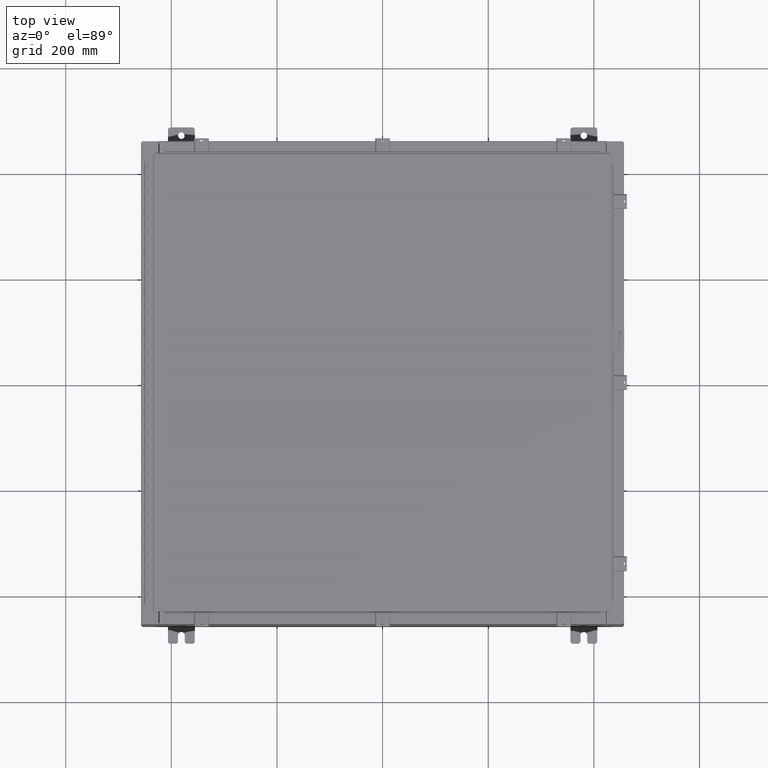
[diagram: clean part render]
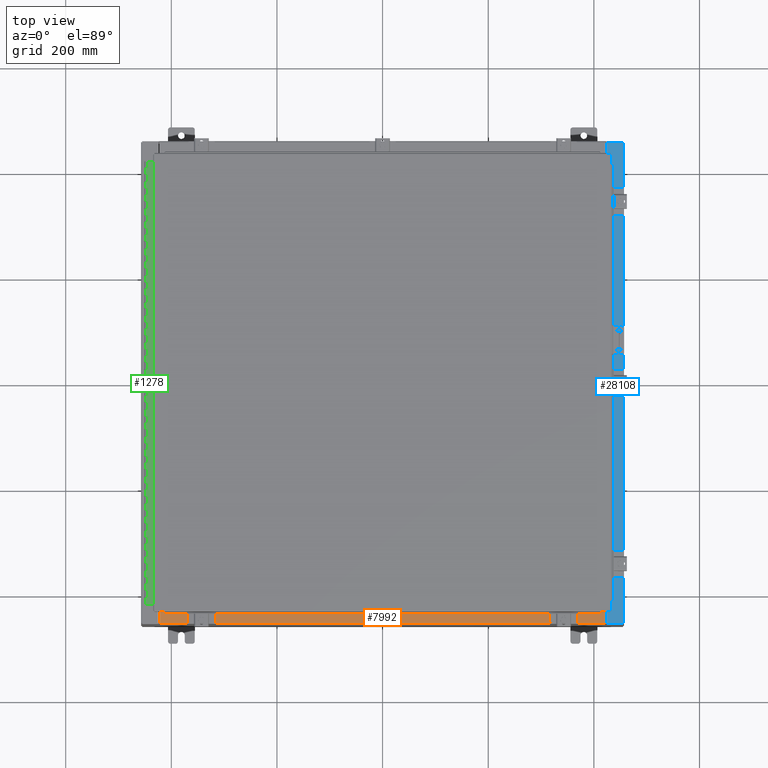
[diagram: same view with three faces highlighted in distinct colors, each labeled with its STEP entity id]
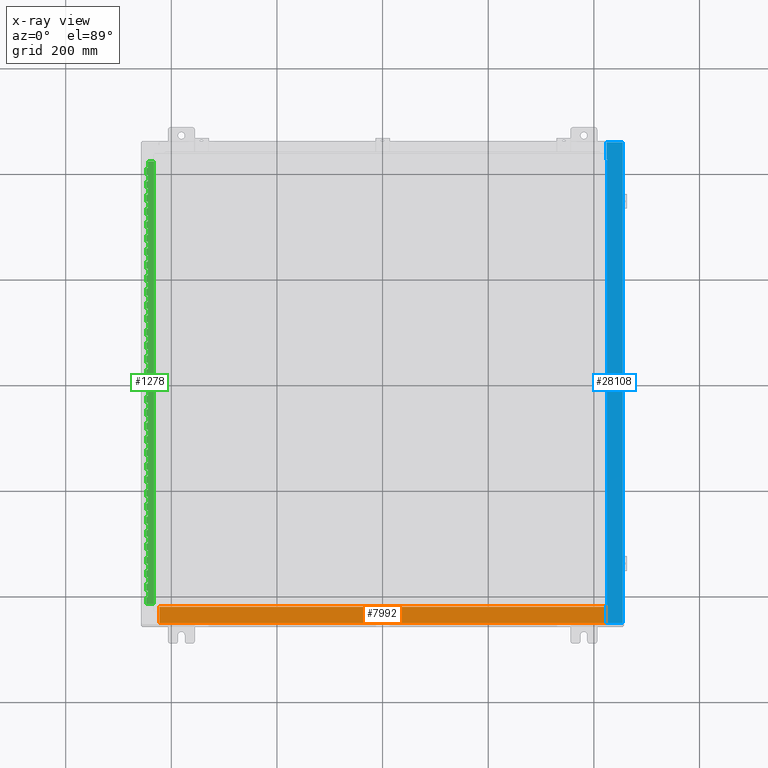
[diagram: x-ray of the same camera — body ghosted, the three highlighted faces saturated]
A machine part, top view with three faces highlighted in distinct colors.
The next image is the same camera in x-ray (body ghosted, the three faces saturated) — at least one of them is partly hidden behind the body in this view.
Their STEP definitions:

[orange] entity #7992 — the highlighted planar face has unit normal (-0, -0, 1).
#3676 = VERTEX_POINT ( 'NONE', #12576 ) ;
#3854 = DIRECTION ( 'NONE',  ( 0.0000000000000000000, 2.674785894579892700E-015, 1.000000000000000000 ) ) ;
#4081 = DIRECTION ( 'NONE',  ( -1.000000000000000000, 0.0000000000000000000, 0.0000000000000000000 ) ) ;
#4446 = CARTESIAN_POINT ( 'NONE',  ( 16.63720000000000400, -1.287299999999999400, 6.000000000000003600 ) ) ;
#7549 = ORIENTED_EDGE ( 'NONE', *, *, #18851, .F. ) ;
#7672 = EDGE_CURVE ( 'NONE', #24159, #3676, #23739, .T. ) ;
#7992 = ADVANCED_FACE ( 'NONE', ( #29114 ), #31520, .T. ) ;
#11576 = LINE ( 'NONE', #14238, #28907 ) ;
#12514 = VERTEX_POINT ( 'NONE', #29888 ) ;
#12576 = CARTESIAN_POINT ( 'NONE',  ( -16.63719999999999600, -0.08769999999999972300, 5.999999999999999100 ) ) ;
#14238 = CARTESIAN_POINT ( 'NONE',  ( -16.63719999999999600, -0.07469999999999973900, 5.999999999999999100 ) ) ;
#14493 = VECTOR ( 'NONE', #37219, 39.37007874015748100 ) ;
#17290 = CARTESIAN_POINT ( 'NONE',  ( 16.63720000000000400, -0.08769999999999948700, 5.999999999999999100 ) ) ;
#17751 = CARTESIAN_POINT ( 'NONE',  ( -2.276882898771239300E-018, 1.610972251716581800E-014, 5.999999999999999100 ) ) ;
#18851 = EDGE_CURVE ( 'NONE', #12514, #3676, #11576, .T. ) ;
#19190 = VECTOR ( 'NONE', #42260, 39.37007874015748100 ) ;
#19853 = AXIS2_PLACEMENT_3D ( 'NONE', #17751, #3854, #35010 ) ;
#20260 = VECTOR ( 'NONE', #4081, 39.37007874015748100 ) ;
#23739 = LINE ( 'NONE', #40715, #14493 ) ;
#24159 = VERTEX_POINT ( 'NONE', #17290 ) ;
#24623 = EDGE_LOOP ( 'NONE', ( #7549, #43224, #36044, #30933 ) ) ;
#26889 = VERTEX_POINT ( 'NONE', #4446 ) ;
#28393 = LINE ( 'NONE', #38773, #19190 ) ;
#28405 = CARTESIAN_POINT ( 'NONE',  ( 16.63720000000000400, -1.287299999999999400, 6.000000000000001800 ) ) ;
#28907 = VECTOR ( 'NONE', #35011, 39.37007874015748100 ) ;
#29114 = FACE_OUTER_BOUND ( 'NONE', #24623, .T. ) ;
#29472 = LINE ( 'NONE', #28405, #20260 ) ;
#29888 = CARTESIAN_POINT ( 'NONE',  ( -16.63719999999999600, -1.287299999999998600, 6.000000000000002700 ) ) ;
#30933 = ORIENTED_EDGE ( 'NONE', *, *, #7672, .T. ) ;
#31520 = PLANE ( 'NONE',  #19853 ) ;
#35010 = DIRECTION ( 'NONE',  ( 0.0000000000000000000, -1.000000000000000000, 2.674785894579892700E-015 ) ) ;
#35011 = DIRECTION ( 'NONE',  ( -0.0000000000000000000, 1.000000000000000000, -2.674785894579892700E-015 ) ) ;
#36044 = ORIENTED_EDGE ( 'NONE', *, *, #38344, .F. ) ;
#37219 = DIRECTION ( 'NONE',  ( -1.000000000000000000, 3.284023746380717400E-017, -8.784060394284559800E-032 ) ) ;
#38344 = EDGE_CURVE ( 'NONE', #24159, #26889, #28393, .T. ) ;
#38773 = CARTESIAN_POINT ( 'NONE',  ( 16.63720000000000400, -1.300299999999999800, 6.000000000000003600 ) ) ;
#38960 = EDGE_CURVE ( 'NONE', #26889, #12514, #29472, .T. ) ;
#40715 = CARTESIAN_POINT ( 'NONE',  ( -5.156971724347648400E-018, -0.08769999999999972300, 5.999999999999999100 ) ) ;
#42260 = DIRECTION ( 'NONE',  ( -0.0000000000000000000, -1.000000000000000000, 3.566381192773190000E-015 ) ) ;
#43224 = ORIENTED_EDGE ( 'NONE', *, *, #38960, .F. ) ;

[blue] entity #28108 — the highlighted planar face has unit normal (-0, 0, -1).
#794 = DIRECTION ( 'NONE',  ( 1.000000000000000000, 4.340572780400098900E-014, 4.340572780400098900E-014 ) ) ;
#903 = VERTEX_POINT ( 'NONE', #5708 ) ;
#1027 = ORIENTED_EDGE ( 'NONE', *, *, #44186, .F. ) ;
#1473 = VERTEX_POINT ( 'NONE', #6072 ) ;
#1476 = VERTEX_POINT ( 'NONE', #25683 ) ;
#1701 = VECTOR ( 'NONE', #30696, 39.37007874015748100 ) ;
#1832 = CARTESIAN_POINT ( 'NONE',  ( 16.75005000000004100, -16.61242500000000200, 11.92530000000001200 ) ) ;
#1837 = DIRECTION ( 'NONE',  ( -1.000000000000000000, 0.0000000000000000000, 7.132762385546384700E-015 ) ) ;
#2503 = VECTOR ( 'NONE', #31173, 39.37007874015748100 ) ;
#2651 = LINE ( 'NONE', #42384, #21198 ) ;
#2812 = CARTESIAN_POINT ( 'NONE',  ( 8.532114493236880700E-014, 0.0000000000000000000, 11.92530000000013000 ) ) ;
#3156 = AXIS2_PLACEMENT_3D ( 'NONE', #1832, #26148, #5326 ) ;
#3437 = VERTEX_POINT ( 'NONE', #14933 ) ;
#3655 = DIRECTION ( 'NONE',  ( 7.132762385546384700E-015, 0.0000000000000000000, 1.000000000000000000 ) ) ;
#4739 = CARTESIAN_POINT ( 'NONE',  ( 16.71270000000004400, -16.59375000000000000, 11.92530000000001200 ) ) ;
#5326 = DIRECTION ( 'NONE',  ( 1.000000000000000000, 0.0000000000000000000, 0.0000000000000000000 ) ) ;
#5708 = CARTESIAN_POINT ( 'NONE',  ( 16.69970000000004300, -17.92530000000000000, 11.92530000000000900 ) ) ;
#5738 = VERTEX_POINT ( 'NONE', #17793 ) ;
#5762 = FACE_OUTER_BOUND ( 'NONE', #20848, .T. ) ;
#6072 = CARTESIAN_POINT ( 'NONE',  ( 16.75005000000004100, 16.59375000000000000, 11.92530000000000900 ) ) ;
#6339 = DIRECTION ( 'NONE',  ( -1.000000000000000000, 0.0000000000000000000, 7.132762385546384700E-015 ) ) ;
#6882 = ORIENTED_EDGE ( 'NONE', *, *, #12116, .T. ) ;
#7007 = VERTEX_POINT ( 'NONE', #42178 ) ;
#7586 = EDGE_CURVE ( 'NONE', #33287, #903, #26980, .T. ) ;
#7637 = ORIENTED_EDGE ( 'NONE', *, *, #34246, .F. ) ;
#7924 = DIRECTION ( 'NONE',  ( -1.000000000000000000, 0.0000000000000000000, 0.0000000000000000000 ) ) ;
#8257 = CIRCLE ( 'NONE', #3156, 0.01867499999999949400 ) ;
#8270 = DIRECTION ( 'NONE',  ( -0.0000000000000000000, 1.000000000000000000, -0.0000000000000000000 ) ) ;
#8491 = CARTESIAN_POINT ( 'NONE',  ( 17.91230000000004100, -17.92530000000000000, 11.92530000000000400 ) ) ;
#10038 = CARTESIAN_POINT ( 'NONE',  ( 16.71270000000004400, -16.59375000000000000, 11.92530000000001200 ) ) ;
#10056 = CARTESIAN_POINT ( 'NONE',  ( 16.75005000000004100, -16.63110000000000000, 11.92530000000000900 ) ) ;
#10185 = VECTOR ( 'NONE', #13419, 39.37007874015748100 ) ;
#11076 = VERTEX_POINT ( 'NONE', #36615 ) ;
#12116 = EDGE_CURVE ( 'NONE', #5738, #11076, #34297, .T. ) ;
#12743 = VECTOR ( 'NONE', #7924, 39.37007874015748100 ) ;
#12801 = ORIENTED_EDGE ( 'NONE', *, *, #31183, .F. ) ;
#13419 = DIRECTION ( 'NONE',  ( -1.000000000000000000, 4.340572780400098900E-014, -4.340572780400098900E-014 ) ) ;
#13465 = LINE ( 'NONE', #23894, #10185 ) ;
#13555 = CARTESIAN_POINT ( 'NONE',  ( 16.69970000000004300, 0.0000000000000000000, 11.92530000000000900 ) ) ;
#13837 = VERTEX_POINT ( 'NONE', #10056 ) ;
#14362 = VECTOR ( 'NONE', #8270, 39.37007874015748100 ) ;
#14933 = CARTESIAN_POINT ( 'NONE',  ( 16.75005000000004100, 16.63110000000000000, 11.92530000000000900 ) ) ;
#15573 = EDGE_CURVE ( 'NONE', #1476, #1473, #30255, .T. ) ;
#16626 = CARTESIAN_POINT ( 'NONE',  ( 16.69970000000004300, 0.0000000000000000000, 11.92530000000000900 ) ) ;
#17101 = EDGE_CURVE ( 'NONE', #33384, #1476, #43128, .T. ) ;
#17471 = LINE ( 'NONE', #43440, #42966 ) ;
#17777 = VECTOR ( 'NONE', #20187, 39.37007874015748100 ) ;
#17793 = CARTESIAN_POINT ( 'NONE',  ( 16.69970000000004300, 17.92530000000000000, 11.92530000000000900 ) ) ;
#18078 = CIRCLE ( 'NONE', #44469, 0.01867499999999949400 ) ;
#19098 = AXIS2_PLACEMENT_3D ( 'NONE', #2812, #27140, #6339 ) ;
#20187 = DIRECTION ( 'NONE',  ( 0.0000000000000000000, -1.000000000000000000, 0.0000000000000000000 ) ) ;
#20398 = CARTESIAN_POINT ( 'NONE',  ( 17.91230000000004100, -17.92530000000000000, 11.92530000000000400 ) ) ;
#20848 = EDGE_LOOP ( 'NONE', ( #7637, #42139, #32375, #23914, #30179, #6882, #28082, #12801, #44257, #32275, #1027, #31893 ) ) ;
#21198 = VECTOR ( 'NONE', #794, 39.37007874015748100 ) ;
#23674 = PLANE ( 'NONE',  #19098 ) ;
#23894 = CARTESIAN_POINT ( 'NONE',  ( 16.75005000000004100, 16.63110000000000000, 11.92530000000001200 ) ) ;
#23914 = ORIENTED_EDGE ( 'NONE', *, *, #31585, .F. ) ;
#24074 = LINE ( 'NONE', #27280, #25154 ) ;
#24500 = CARTESIAN_POINT ( 'NONE',  ( 16.75005000000004100, 16.61242500000000200, 11.92530000000001200 ) ) ;
#25154 = VECTOR ( 'NONE', #30776, 39.37007874015748100 ) ;
#25683 = CARTESIAN_POINT ( 'NONE',  ( 16.71270000000004400, 16.59375000000000000, 11.92530000000001200 ) ) ;
#26148 = DIRECTION ( 'NONE',  ( 7.132762385546384700E-015, 0.0000000000000000000, 1.000000000000000000 ) ) ;
#26980 = LINE ( 'NONE', #16626, #17777 ) ;
#27140 = DIRECTION ( 'NONE',  ( -7.132762385546384700E-015, 0.0000000000000000000, -1.000000000000000000 ) ) ;
#27280 = CARTESIAN_POINT ( 'NONE',  ( 8.532114493236880700E-014, -17.92530000000000000, 11.92530000000013000 ) ) ;
#27677 = CARTESIAN_POINT ( 'NONE',  ( 16.71270000000004400, 16.59375000000000000, 11.92530000000001200 ) ) ;
#27973 = DIRECTION ( 'NONE',  ( 1.000000000000000000, 0.0000000000000000000, 0.0000000000000000000 ) ) ;
#28082 = ORIENTED_EDGE ( 'NONE', *, *, #42127, .F. ) ;
#28108 = ADVANCED_FACE ( 'NONE', ( #5762 ), #23674, .F. ) ;
#30068 = EDGE_CURVE ( 'NONE', #903, #41326, #24074, .T. ) ;
#30179 = ORIENTED_EDGE ( 'NONE', *, *, #33134, .T. ) ;
#30255 = LINE ( 'NONE', #27677, #2503 ) ;
#30696 = DIRECTION ( 'NONE',  ( -0.0000000000000000000, -1.000000000000000000, -0.0000000000000000000 ) ) ;
#30776 = DIRECTION ( 'NONE',  ( 1.000000000000000000, 0.0000000000000000000, -7.132762385546384700E-015 ) ) ;
#30839 = VERTEX_POINT ( 'NONE', #42537 ) ;
#31173 = DIRECTION ( 'NONE',  ( 1.000000000000000000, 0.0000000000000000000, 0.0000000000000000000 ) ) ;
#31183 = EDGE_CURVE ( 'NONE', #1473, #3437, #18078, .T. ) ;
#31507 = EDGE_CURVE ( 'NONE', #13837, #30839, #8257, .T. ) ;
#31585 = EDGE_CURVE ( 'NONE', #7007, #41326, #40822, .T. ) ;
#31893 = ORIENTED_EDGE ( 'NONE', *, *, #31507, .F. ) ;
#32206 = CARTESIAN_POINT ( 'NONE',  ( 16.75005000000004100, -16.59375000000000000, 11.92530000000001200 ) ) ;
#32275 = ORIENTED_EDGE ( 'NONE', *, *, #17101, .F. ) ;
#32375 = ORIENTED_EDGE ( 'NONE', *, *, #30068, .T. ) ;
#33134 = EDGE_CURVE ( 'NONE', #7007, #5738, #17471, .T. ) ;
#33212 = VECTOR ( 'NONE', #37813, 39.37007874015748100 ) ;
#33287 = VERTEX_POINT ( 'NONE', #37208 ) ;
#33384 = VERTEX_POINT ( 'NONE', #10038 ) ;
#34246 = EDGE_CURVE ( 'NONE', #33287, #13837, #2651, .T. ) ;
#34297 = LINE ( 'NONE', #13555, #33212 ) ;
#36615 = CARTESIAN_POINT ( 'NONE',  ( 16.69970000000004300, 16.63110000000000000, 11.92530000000000900 ) ) ;
#37208 = CARTESIAN_POINT ( 'NONE',  ( 16.69970000000004300, -16.63110000000000400, 11.92530000000000900 ) ) ;
#37813 = DIRECTION ( 'NONE',  ( 0.0000000000000000000, -1.000000000000000000, 0.0000000000000000000 ) ) ;
#38229 = LINE ( 'NONE', #32206, #12743 ) ;
#40822 = LINE ( 'NONE', #20398, #1701 ) ;
#41326 = VERTEX_POINT ( 'NONE', #8491 ) ;
#42127 = EDGE_CURVE ( 'NONE', #3437, #11076, #13465, .T. ) ;
#42139 = ORIENTED_EDGE ( 'NONE', *, *, #7586, .T. ) ;
#42178 = CARTESIAN_POINT ( 'NONE',  ( 17.91230000000004100, 17.92530000000000000, 11.92530000000000400 ) ) ;
#42384 = CARTESIAN_POINT ( 'NONE',  ( 16.69970000000004300, -16.63110000000000400, 11.92530000000000900 ) ) ;
#42537 = CARTESIAN_POINT ( 'NONE',  ( 16.75005000000004100, -16.59375000000000000, 11.92530000000000900 ) ) ;
#42966 = VECTOR ( 'NONE', #1837, 39.37007874015748100 ) ;
#43128 = LINE ( 'NONE', #4739, #14362 ) ;
#43440 = CARTESIAN_POINT ( 'NONE',  ( 8.532114493236880700E-014, 17.92530000000000000, 11.92530000000013000 ) ) ;
#44186 = EDGE_CURVE ( 'NONE', #30839, #33384, #38229, .T. ) ;
#44257 = ORIENTED_EDGE ( 'NONE', *, *, #15573, .F. ) ;
#44469 = AXIS2_PLACEMENT_3D ( 'NONE', #24500, #3655, #27973 ) ;

[green] entity #1278 — the highlighted planar face has unit normal (-0, -0, 1).
#27 = CARTESIAN_POINT ( 'NONE',  ( -0.6869999999999978300, 0.6754999999999996600, -23.50000000000000000 ) ) ;
#88 = CARTESIAN_POINT ( 'NONE',  ( -0.6869999999999982800, 0.5504999999999997700, -14.49999999999999800 ) ) ;
#110 = EDGE_CURVE ( 'NONE', #36002, #10714, #9914, .T. ) ;
#125 = VERTEX_POINT ( 'NONE', #25531 ) ;
#137 = LINE ( 'NONE', #23202, #25676 ) ;
#179 = LINE ( 'NONE', #31000, #17593 ) ;
#292 = CARTESIAN_POINT ( 'NONE',  ( -0.6869999999999982800, 0.5504999999999997700, -20.50000000000000400 ) ) ;
#313 = CARTESIAN_POINT ( 'NONE',  ( -0.6869999999999978300, 0.6754999999999996600, -33.00000000000000000 ) ) ;
#339 = CARTESIAN_POINT ( 'NONE',  ( -0.6869999999999978300, 0.6754999999999996600, -33.00000000000000000 ) ) ;
#418 = ORIENTED_EDGE ( 'NONE', *, *, #31314, .F. ) ;
#469 = EDGE_CURVE ( 'NONE', #10608, #8473, #41895, .T. ) ;
#517 = EDGE_CURVE ( 'NONE', #15992, #39261, #21301, .T. ) ;
#530 = ORIENTED_EDGE ( 'NONE', *, *, #2840, .F. ) ;
#606 = ORIENTED_EDGE ( 'NONE', *, *, #12985, .F. ) ;
#663 = VERTEX_POINT ( 'NONE', #29764 ) ;
#691 = VERTEX_POINT ( 'NONE', #36917 ) ;
#692 = EDGE_CURVE ( 'NONE', #33184, #19146, #16944, .T. ) ;
#875 = VERTEX_POINT ( 'NONE', #9807 ) ;
#907 = VERTEX_POINT ( 'NONE', #16953 ) ;
#950 = EDGE_CURVE ( 'NONE', #43618, #15664, #6019, .T. ) ;
#1088 = VECTOR ( 'NONE', #6572, 39.37007874015748100 ) ;
#1089 = CARTESIAN_POINT ( 'NONE',  ( -0.6869999999999978300, 0.6754999999999996600, -18.50000000000000000 ) ) ;
#1095 = VERTEX_POINT ( 'NONE', #6868 ) ;
#1106 = CARTESIAN_POINT ( 'NONE',  ( -0.6869999999999978300, 0.6754999999999996600, -6.000000000000000900 ) ) ;
#1128 = ORIENTED_EDGE ( 'NONE', *, *, #11359, .F. ) ;
#1148 = VECTOR ( 'NONE', #18573, 39.37007874015748100 ) ;
#1251 = ORIENTED_EDGE ( 'NONE', *, *, #21820, .F. ) ;
#1255 = EDGE_CURVE ( 'NONE', #15664, #875, #32082, .T. ) ;
#1278 = ADVANCED_FACE ( 'NONE', ( #29901 ), #29776, .T. ) ;
#1324 = ORIENTED_EDGE ( 'NONE', *, *, #35867, .T. ) ;
#1435 = LINE ( 'NONE', #9892, #28049 ) ;
#1472 = VERTEX_POINT ( 'NONE', #38278 ) ;
#1482 = ORIENTED_EDGE ( 'NONE', *, *, #15584, .F. ) ;
#1564 = EDGE_CURVE ( 'NONE', #1472, #1095, #10869, .T. ) ;
#1649 = ORIENTED_EDGE ( 'NONE', *, *, #33386, .F. ) ;
#1670 = VECTOR ( 'NONE', #15907, 39.37007874015748100 ) ;
#1732 = CARTESIAN_POINT ( 'NONE',  ( -0.6869999999999978300, 0.6754999999999996600, -33.00000000000000000 ) ) ;
#1843 = CARTESIAN_POINT ( 'NONE',  ( -0.6869999999999978300, 0.6754999999999996600, -33.00000000000000000 ) ) ;
#1850 = VECTOR ( 'NONE', #1964, 39.37007874015748100 ) ;
#1903 = EDGE_CURVE ( 'NONE', #5102, #37108, #15196, .T. ) ;
#1921 = DIRECTION ( 'NONE',  ( 0.0000000000000000000, -0.0000000000000000000, -1.000000000000000000 ) ) ;
#1964 = DIRECTION ( 'NONE',  ( 0.0000000000000000000, -0.0000000000000000000, -1.000000000000000000 ) ) ;
#2048 = VERTEX_POINT ( 'NONE', #29043 ) ;
#2051 = VERTEX_POINT ( 'NONE', #8407 ) ;
#2144 = VERTEX_POINT ( 'NONE', #7698 ) ;
#2189 = VERTEX_POINT ( 'NONE', #7846 ) ;
#2264 = CARTESIAN_POINT ( 'NONE',  ( -0.6869999999999982800, 0.5504999999999997700, -0.5000000000000000000 ) ) ;
#2336 = LINE ( 'NONE', #6709, #9429 ) ;
#2349 = EDGE_CURVE ( 'NONE', #4596, #18519, #16261, .T. ) ;
#2401 = ORIENTED_EDGE ( 'NONE', *, *, #32187, .F. ) ;
#2454 = CARTESIAN_POINT ( 'NONE',  ( -0.6869999999999978300, 0.6754999999999996600, -33.00000000000000000 ) ) ;
#2460 = VECTOR ( 'NONE', #3566, 39.37007874015748100 ) ;
#2553 = VECTOR ( 'NONE', #25770, 39.37007874015748100 ) ;
#2554 = CARTESIAN_POINT ( 'NONE',  ( -0.6869999999999978300, 0.6754999999999996600, -17.99999999999999600 ) ) ;
#2571 = VERTEX_POINT ( 'NONE', #19126 ) ;
#2577 = VECTOR ( 'NONE', #24847, 39.37007874015748100 ) ;
#2598 = CARTESIAN_POINT ( 'NONE',  ( -0.6869999999999982800, 0.5504999999999997700, -13.50000000000000000 ) ) ;
#2666 = CARTESIAN_POINT ( 'NONE',  ( -0.6869999999999982800, 0.5504999999999997700, -11.00000000000000000 ) ) ;
#2677 = EDGE_CURVE ( 'NONE', #33008, #25350, #40100, .T. ) ;
#2705 = LINE ( 'NONE', #32225, #38578 ) ;
#2716 = ORIENTED_EDGE ( 'NONE', *, *, #950, .F. ) ;
#2722 = VERTEX_POINT ( 'NONE', #24077 ) ;
#2759 = VECTOR ( 'NONE', #37663, 39.37007874015748100 ) ;
#2761 = VECTOR ( 'NONE', #14153, 39.37007874015748100 ) ;
#2840 = EDGE_CURVE ( 'NONE', #39111, #2722, #24956, .T. ) ;
#2874 = CARTESIAN_POINT ( 'NONE',  ( -0.6869999999999978300, 0.6754999999999996600, -11.00000000000000000 ) ) ;
#2882 = CARTESIAN_POINT ( 'NONE',  ( -0.6869999999999978300, 0.6754999999999996600, -16.00000000000000000 ) ) ;
#2955 = DIRECTION ( 'NONE',  ( -3.389037039080723100E-015, -1.000000000000000000, 0.0000000000000000000 ) ) ;
#2985 = ORIENTED_EDGE ( 'NONE', *, *, #110, .T. ) ;
#3095 = EDGE_CURVE ( 'NONE', #33041, #33116, #43932, .T. ) ;
#3144 = CARTESIAN_POINT ( 'NONE',  ( -0.6869999999999978300, 0.6754999999999996600, -1.499999999999999800 ) ) ;
#3242 = LINE ( 'NONE', #339, #1088 ) ;
#3244 = ORIENTED_EDGE ( 'NONE', *, *, #7767, .F. ) ;
#3255 = VECTOR ( 'NONE', #22359, 39.37007874015748100 ) ;
#3284 = VERTEX_POINT ( 'NONE', #35417 ) ;
#3293 = ORIENTED_EDGE ( 'NONE', *, *, #3977, .T. ) ;
#3313 = CARTESIAN_POINT ( 'NONE',  ( -0.6869999999999978300, 0.6754999999999996600, -19.00000000000000000 ) ) ;
#3444 = ORIENTED_EDGE ( 'NONE', *, *, #13055, .F. ) ;
#3446 = CARTESIAN_POINT ( 'NONE',  ( -0.6869999999999973900, 0.8004999999999995500, -17.00000000000000000 ) ) ;
#3487 = DIRECTION ( 'NONE',  ( 3.389037039080723100E-015, 1.000000000000000000, -0.0000000000000000000 ) ) ;
#3498 = LINE ( 'NONE', #5839, #20956 ) ;
#3501 = DIRECTION ( 'NONE',  ( -3.389037039080723100E-015, -1.000000000000000000, 0.0000000000000000000 ) ) ;
#3566 = DIRECTION ( 'NONE',  ( 0.0000000000000000000, 0.0000000000000000000, 1.000000000000000000 ) ) ;
#3595 = ORIENTED_EDGE ( 'NONE', *, *, #21504, .F. ) ;
#3609 = VECTOR ( 'NONE', #33285, 39.37007874015748100 ) ;
#3639 = DIRECTION ( 'NONE',  ( -3.389037039080723100E-015, -1.000000000000000000, 0.0000000000000000000 ) ) ;
#3703 = EDGE_CURVE ( 'NONE', #15589, #35418, #20001, .T. ) ;
#3770 = DIRECTION ( 'NONE',  ( 3.389037039080723100E-015, 1.000000000000000000, -0.0000000000000000000 ) ) ;
#3892 = CARTESIAN_POINT ( 'NONE',  ( -0.6869999999999973900, 0.8004999999999995500, -6.000000000000000900 ) ) ;
#3977 = EDGE_CURVE ( 'NONE', #39360, #8073, #44933, .T. ) ;
#3976 = DIRECTION ( 'NONE',  ( -3.389037039080723100E-015, -1.000000000000000000, 0.0000000000000000000 ) ) ;
#4001 = CARTESIAN_POINT ( 'NONE',  ( -0.6869999999999978300, 0.6754999999999996600, -33.00000000000000000 ) ) ;
#4069 = CARTESIAN_POINT ( 'NONE',  ( -0.6869999999999978300, 0.6754999999999996600, -25.50000000000000400 ) ) ;
#4085 = EDGE_CURVE ( 'NONE', #907, #7189, #5818, .T. ) ;
#4129 = EDGE_CURVE ( 'NONE', #2189, #34231, #22155, .T. ) ;
#4142 = EDGE_CURVE ( 'NONE', #36749, #20871, #30270, .T. ) ;
#4166 = CARTESIAN_POINT ( 'NONE',  ( -0.6869999999999973900, 0.8004999999999995500, -9.500000000000000000 ) ) ;
#4179 = ORIENTED_EDGE ( 'NONE', *, *, #20018, .F. ) ;
#4248 = ORIENTED_EDGE ( 'NONE', *, *, #4496, .F. ) ;
#4250 = CARTESIAN_POINT ( 'NONE',  ( -0.6869999999999978300, 0.6754999999999996600, -23.99999999999999600 ) ) ;
#4252 = CARTESIAN_POINT ( 'NONE',  ( -0.6869999999999978300, 0.6754999999999996600, -1.000000000000000000 ) ) ;
#4267 = VECTOR ( 'NONE', #29634, 39.37007874015748100 ) ;
#4280 = EDGE_CURVE ( 'NONE', #33298, #26027, #34052, .T. ) ;
#4282 = EDGE_CURVE ( 'NONE', #35043, #14535, #6341, .T. ) ;
#4305 = LINE ( 'NONE', #15881, #21752 ) ;
#4434 = DIRECTION ( 'NONE',  ( 3.389037039080723100E-015, 1.000000000000000000, -0.0000000000000000000 ) ) ;
#4496 = EDGE_CURVE ( 'NONE', #12554, #6271, #15025, .T. ) ;
#4498 = VERTEX_POINT ( 'NONE', #30489 ) ;
#4526 = LINE ( 'NONE', #7613, #31180 ) ;
#4540 = CARTESIAN_POINT ( 'NONE',  ( -0.6869999999999973900, 0.8004999999999995500, -14.00000000000000000 ) ) ;
#4563 = CARTESIAN_POINT ( 'NONE',  ( -0.6869999999999982800, 0.5504999999999997700, -26.50000000000000400 ) ) ;
#4589 = ORIENTED_EDGE ( 'NONE', *, *, #4085, .F. ) ;
#4596 = VERTEX_POINT ( 'NONE', #10881 ) ;
#4630 = CARTESIAN_POINT ( 'NONE',  ( -0.6869999999999982800, 0.5504999999999997700, -3.500000000000000000 ) ) ;
#4766 = CARTESIAN_POINT ( 'NONE',  ( -0.6869999999999982800, 0.5504999999999997700, -30.50000000000000400 ) ) ;
#4790 = ORIENTED_EDGE ( 'NONE', *, *, #16701, .F. ) ;
#4849 = VECTOR ( 'NONE', #16922, 39.37007874015748100 ) ;
#4850 = LINE ( 'NONE', #43596, #13047 ) ;
#4945 = VECTOR ( 'NONE', #30547, 39.37007874015748100 ) ;
#4957 = EDGE_CURVE ( 'NONE', #31541, #21679, #44846, .T. ) ;
#4958 = CARTESIAN_POINT ( 'NONE',  ( -0.6869999999999982800, 0.5504999999999997700, -23.00000000000000000 ) ) ;
#5011 = DIRECTION ( 'NONE',  ( 0.0000000000000000000, 0.0000000000000000000, 1.000000000000000000 ) ) ;
#5024 = DIRECTION ( 'NONE',  ( 0.0000000000000000000, 0.0000000000000000000, 1.000000000000000000 ) ) ;
#5060 = CARTESIAN_POINT ( 'NONE',  ( -0.6869999999999982800, 0.5504999999999997700, -0.5000000000000000000 ) ) ;
#5097 = EDGE_CURVE ( 'NONE', #5764, #10001, #2705, .T. ) ;
#5102 = VERTEX_POINT ( 'NONE', #33490 ) ;
#5146 = CARTESIAN_POINT ( 'NONE',  ( -0.6869999999999982800, 0.5504999999999997700, -14.00000000000000000 ) ) ;
#5225 = DIRECTION ( 'NONE',  ( -3.389037039080723100E-015, -1.000000000000000000, 0.0000000000000000000 ) ) ;
#5227 = VECTOR ( 'NONE', #21612, 39.37007874015748100 ) ;
#5328 = CARTESIAN_POINT ( 'NONE',  ( -0.6869999999999973900, 0.8004999999999995500, -15.50000000000000000 ) ) ;
#5354 = VERTEX_POINT ( 'NONE', #4958 ) ;
#5376 = EDGE_CURVE ( 'NONE', #40406, #11171, #3242, .T. ) ;
#5433 = ORIENTED_EDGE ( 'NONE', *, *, #42538, .T. ) ;
#5503 = DIRECTION ( 'NONE',  ( 0.0000000000000000000, 0.0000000000000000000, 1.000000000000000000 ) ) ;
#5584 = CARTESIAN_POINT ( 'NONE',  ( -0.6869999999999982800, 0.5504999999999997700, -24.50000000000000000 ) ) ;
#5680 = CARTESIAN_POINT ( 'NONE',  ( -0.6869999999999978300, 0.6754999999999996600, -4.500000000000000000 ) ) ;
#5713 = EDGE_CURVE ( 'NONE', #12554, #21775, #44519, .T. ) ;
#5764 = VERTEX_POINT ( 'NONE', #31575 ) ;
#5784 = VECTOR ( 'NONE', #21671, 39.37007874015748100 ) ;
#5808 = VECTOR ( 'NONE', #34374, 39.37007874015748100 ) ;
#5818 = LINE ( 'NONE', #24007, #13982 ) ;
#5834 = DIRECTION ( 'NONE',  ( 0.0000000000000000000, 0.0000000000000000000, 1.000000000000000000 ) ) ;
#5839 = CARTESIAN_POINT ( 'NONE',  ( -0.6870000000000022800, -0.6245000000000003900, 0.0000000000000000000 ) ) ;
#5943 = CARTESIAN_POINT ( 'NONE',  ( -0.6869999999999978300, 0.6754999999999996600, -33.00000000000000000 ) ) ;
#6019 = LINE ( 'NONE', #43673, #41856 ) ;
#6050 = VECTOR ( 'NONE', #36489, 39.37007874015748100 ) ;
#6095 = VECTOR ( 'NONE', #32585, 39.37007874015748100 ) ;
#6167 = CARTESIAN_POINT ( 'NONE',  ( -0.6869999999999978300, 0.6754999999999996600, -10.00000000000000000 ) ) ;
#6218 = DIRECTION ( 'NONE',  ( 0.0000000000000000000, -0.0000000000000000000, -1.000000000000000000 ) ) ;
#6246 = CARTESIAN_POINT ( 'NONE',  ( -0.6869999999999973900, 0.8004999999999995500, -27.00000000000000000 ) ) ;
#6271 = VERTEX_POINT ( 'NONE', #26160 ) ;
#6318 = ORIENTED_EDGE ( 'NONE', *, *, #5713, .T. ) ;
#6341 = LINE ( 'NONE', #20585, #23753 ) ;
#6342 = CARTESIAN_POINT ( 'NONE',  ( -0.6869999999999973900, 0.8004999999999995500, -31.50000000000000400 ) ) ;
#6356 = CARTESIAN_POINT ( 'NONE',  ( -0.6869999999999978300, 0.6754999999999996600, -33.00000000000000000 ) ) ;
#6459 = VERTEX_POINT ( 'NONE', #15237 ) ;
#6471 = CARTESIAN_POINT ( 'NONE',  ( -0.6869999999999973900, 0.8004999999999995500, -28.00000000000000000 ) ) ;
#6489 = LINE ( 'NONE', #36853, #23899 ) ;
#6492 = EDGE_CURVE ( 'NONE', #30253, #26732, #10259, .T. ) ;
#6532 = CARTESIAN_POINT ( 'NONE',  ( -0.6869999999999973900, 0.8004999999999995500, -23.50000000000000000 ) ) ;
#6558 = CARTESIAN_POINT ( 'NONE',  ( -0.6869999999999982800, 0.5504999999999997700, -19.50000000000000000 ) ) ;
#6569 = VECTOR ( 'NONE', #17051, 39.37007874015748100 ) ;
#6572 = DIRECTION ( 'NONE',  ( 0.0000000000000000000, 0.0000000000000000000, 1.000000000000000000 ) ) ;
#6612 = CARTESIAN_POINT ( 'NONE',  ( -0.6869999999999973900, 0.8004999999999995500, -11.50000000000000000 ) ) ;
#6634 = VERTEX_POINT ( 'NONE', #34578 ) ;
#6638 = VECTOR ( 'NONE', #39470, 39.37007874015748100 ) ;
#6709 = CARTESIAN_POINT ( 'NONE',  ( -0.6869999999999982800, 0.5504999999999997700, -19.50000000000000000 ) ) ;
#6730 = EDGE_CURVE ( 'NONE', #5354, #35418, #15681, .T. ) ;
#6868 = CARTESIAN_POINT ( 'NONE',  ( -0.6869999999999978300, 0.6754999999999996600, -29.99999999999999600 ) ) ;
#6961 = ORIENTED_EDGE ( 'NONE', *, *, #4957, .T. ) ;
#6966 = LINE ( 'NONE', #42466, #33599 ) ;
#7036 = ORIENTED_EDGE ( 'NONE', *, *, #30311, .F. ) ;
#7189 = VERTEX_POINT ( 'NONE', #4252 ) ;
#7195 = VECTOR ( 'NONE', #42740, 39.37007874015748100 ) ;
#7221 = VERTEX_POINT ( 'NONE', #1089 ) ;
#7228 = EDGE_CURVE ( 'NONE', #44113, #29204, #13450, .T. ) ;
#7281 = CARTESIAN_POINT ( 'NONE',  ( -0.6869999999999982800, 0.5504999999999997700, -9.500000000000000000 ) ) ;
#7296 = DIRECTION ( 'NONE',  ( 3.389037039080723100E-015, 1.000000000000000000, -0.0000000000000000000 ) ) ;
#7348 = VECTOR ( 'NONE', #14068, 39.37007874015748100 ) ;
#7437 = DIRECTION ( 'NONE',  ( 3.389037039080723100E-015, 1.000000000000000000, -0.0000000000000000000 ) ) ;
#7456 = VECTOR ( 'NONE', #18602, 39.37007874015748100 ) ;
#7488 = VERTEX_POINT ( 'NONE', #10384 ) ;
#7531 = VERTEX_POINT ( 'NONE', #2874 ) ;
#7579 = LINE ( 'NONE', #24794, #13569 ) ;
#7592 = VERTEX_POINT ( 'NONE', #16684 ) ;
#7613 = CARTESIAN_POINT ( 'NONE',  ( -0.6869999999999973900, 0.8004999999999995500, -7.000000000000000000 ) ) ;
#7624 = CARTESIAN_POINT ( 'NONE',  ( -0.6869999999999982800, 0.5504999999999997700, -29.50000000000000000 ) ) ;
#7661 = CARTESIAN_POINT ( 'NONE',  ( -0.6869999999999978300, 0.6754999999999996600, -12.49999999999999800 ) ) ;
#7698 = CARTESIAN_POINT ( 'NONE',  ( -0.6869999999999982800, 0.5504999999999997700, -20.00000000000000000 ) ) ;
#7735 = CARTESIAN_POINT ( 'NONE',  ( -0.6869999999999982800, 0.5504999999999997700, -26.50000000000000400 ) ) ;
#7736 = ORIENTED_EDGE ( 'NONE', *, *, #4282, .F. ) ;
#7767 = EDGE_CURVE ( 'NONE', #28176, #17164, #11232, .T. ) ;
#7781 = EDGE_CURVE ( 'NONE', #19511, #35689, #19378, .T. ) ;
#7846 = CARTESIAN_POINT ( 'NONE',  ( -0.6869999999999982800, 0.5504999999999997700, -4.500000000000000000 ) ) ;
#7949 = EDGE_CURVE ( 'NONE', #30253, #3284, #11770, .T. ) ;
#7963 = EDGE_CURVE ( 'NONE', #40816, #13807, #39423, .T. ) ;
#8030 = EDGE_CURVE ( 'NONE', #2144, #8252, #17739, .T. ) ;
#8066 = DIRECTION ( 'NONE',  ( 3.389037039080723100E-015, 1.000000000000000000, -0.0000000000000000000 ) ) ;
#8073 = VERTEX_POINT ( 'NONE', #27682 ) ;
#8079 = VECTOR ( 'NONE', #17698, 39.37007874015748100 ) ;
#8106 = VERTEX_POINT ( 'NONE', #20886 ) ;
#8111 = EDGE_CURVE ( 'NONE', #18537, #7488, #32918, .T. ) ;
#8252 = VERTEX_POINT ( 'NONE', #43027 ) ;
#8386 = VECTOR ( 'NONE', #3639, 39.37007874015748100 ) ;
#8407 = CARTESIAN_POINT ( 'NONE',  ( -0.6869999999999982800, 0.5504999999999997700, -17.00000000000000000 ) ) ;
#8473 = VERTEX_POINT ( 'NONE', #41332 ) ;
#8504 = ORIENTED_EDGE ( 'NONE', *, *, #44132, .F. ) ;
#8561 = CARTESIAN_POINT ( 'NONE',  ( -0.6869999999999982800, 0.5504999999999997700, -12.99999999999999800 ) ) ;
#8595 = ORIENTED_EDGE ( 'NONE', *, *, #33194, .F. ) ;
#8603 = EDGE_CURVE ( 'NONE', #39901, #8252, #22568, .T. ) ;
#8726 = VERTEX_POINT ( 'NONE', #26778 ) ;
#8841 = LINE ( 'NONE', #18553, #26215 ) ;
#8984 = EDGE_CURVE ( 'NONE', #39405, #6459, #44210, .T. ) ;
#8992 = ORIENTED_EDGE ( 'NONE', *, *, #692, .F. ) ;
#9081 = ORIENTED_EDGE ( 'NONE', *, *, #28656, .F. ) ;
#9116 = VECTOR ( 'NONE', #2955, 39.37007874015748100 ) ;
#9202 = ORIENTED_EDGE ( 'NONE', *, *, #11865, .F. ) ;
#9243 = VECTOR ( 'NONE', #5011, 39.37007874015748100 ) ;
#9244 = VERTEX_POINT ( 'NONE', #5146 ) ;
#9250 = CARTESIAN_POINT ( 'NONE',  ( -0.6869999999999978300, 0.6754999999999996600, -10.50000000000000000 ) ) ;
#9273 = CARTESIAN_POINT ( 'NONE',  ( -0.6869999999999978300, 0.6754999999999996600, -33.00000000000000000 ) ) ;
#9425 = CARTESIAN_POINT ( 'NONE',  ( -0.6869999999999973900, 0.8004999999999995500, -4.500000000000000000 ) ) ;
#9429 = VECTOR ( 'NONE', #24029, 39.37007874015748100 ) ;
#9512 = VECTOR ( 'NONE', #20127, 39.37007874015748100 ) ;
#9544 = DIRECTION ( 'NONE',  ( 0.0000000000000000000, 0.0000000000000000000, 1.000000000000000000 ) ) ;
#9709 = CARTESIAN_POINT ( 'NONE',  ( -0.6869999999999973900, 0.8004999999999995500, -26.50000000000000400 ) ) ;
#9745 = DIRECTION ( 'NONE',  ( -3.389037039080723100E-015, -1.000000000000000000, 0.0000000000000000000 ) ) ;
#9752 = CARTESIAN_POINT ( 'NONE',  ( -0.6869999999999978300, 0.6754999999999996600, -27.50000000000000000 ) ) ;
#9778 = CARTESIAN_POINT ( 'NONE',  ( -0.6869999999999978300, 0.6754999999999996600, -33.00000000000000000 ) ) ;
#9801 = DIRECTION ( 'NONE',  ( 0.0000000000000000000, -0.0000000000000000000, -1.000000000000000000 ) ) ;
#9807 = CARTESIAN_POINT ( 'NONE',  ( -0.6869999999999982800, 0.5504999999999997700, -29.99999999999999600 ) ) ;
#9886 = CARTESIAN_POINT ( 'NONE',  ( -0.6869999999999982800, 0.5504999999999997700, -22.50000000000000000 ) ) ;
#9892 = CARTESIAN_POINT ( 'NONE',  ( -0.6869999999999982800, 0.5504999999999997700, -18.50000000000000000 ) ) ;
#9914 = LINE ( 'NONE', #26446, #20256 ) ;
#9960 = VECTOR ( 'NONE', #24073, 39.37007874015748100 ) ;
#9962 = LINE ( 'NONE', #41652, #36582 ) ;
#9989 = EDGE_CURVE ( 'NONE', #663, #5764, #137, .T. ) ;
#10001 = VERTEX_POINT ( 'NONE', #26671 ) ;
#10060 = DIRECTION ( 'NONE',  ( 3.389037039080723100E-015, 1.000000000000000000, -0.0000000000000000000 ) ) ;
#10073 = DIRECTION ( 'NONE',  ( 3.389037039080723100E-015, 1.000000000000000000, -0.0000000000000000000 ) ) ;
#10137 = VECTOR ( 'NONE', #38267, 39.37007874015748100 ) ;
#10208 = LINE ( 'NONE', #6612, #9116 ) ;
#10216 = CARTESIAN_POINT ( 'NONE',  ( -0.6869999999999982800, 0.5504999999999997700, -29.50000000000000000 ) ) ;
#10253 = DIRECTION ( 'NONE',  ( 3.369016658928398200E-015, 1.000000000000000000, 0.0000000000000000000 ) ) ;
#10259 = LINE ( 'NONE', #34025, #16242 ) ;
#10298 = CARTESIAN_POINT ( 'NONE',  ( -0.6869999999999978300, 0.6754999999999996600, -26.00000000000000000 ) ) ;
#10306 = CARTESIAN_POINT ( 'NONE',  ( -0.6869999999999982800, 0.5504999999999997700, -6.000000000000000900 ) ) ;
#10384 = CARTESIAN_POINT ( 'NONE',  ( -0.6869999999999978300, 0.6754999999999996600, -21.00000000000000000 ) ) ;
#10402 = LINE ( 'NONE', #28290, #35919 ) ;
#10433 = CARTESIAN_POINT ( 'NONE',  ( -0.6869999999999978300, 0.6754999999999996600, -33.00000000000000000 ) ) ;
#10490 = VERTEX_POINT ( 'NONE', #5680 ) ;
#10518 = CARTESIAN_POINT ( 'NONE',  ( -0.6869999999999973900, 0.8004999999999995500, -13.50000000000000000 ) ) ;
#10592 = ORIENTED_EDGE ( 'NONE', *, *, #14342, .F. ) ;
#10594 = ORIENTED_EDGE ( 'NONE', *, *, #7949, .T. ) ;
#10608 = VERTEX_POINT ( 'NONE', #34053 ) ;
#10660 = EDGE_CURVE ( 'NONE', #25350, #7488, #28316, .T. ) ;
#10693 = VECTOR ( 'NONE', #41627, 39.37007874015748100 ) ;
#10714 = VERTEX_POINT ( 'NONE', #17360 ) ;
#10869 = LINE ( 'NONE', #6356, #19024 ) ;
#10881 = CARTESIAN_POINT ( 'NONE',  ( -0.6869999999999982800, 0.5504999999999997700, -24.50000000000000000 ) ) ;
#10931 = EDGE_CURVE ( 'NONE', #9244, #33116, #17459, .T. ) ;
#10936 = DIRECTION ( 'NONE',  ( 0.0000000000000000000, 0.0000000000000000000, 1.000000000000000000 ) ) ;
#10964 = EDGE_CURVE ( 'NONE', #12632, #42586, #8841, .T. ) ;
#11058 = LINE ( 'NONE', #31036, #9960 ) ;
#11082 = VERTEX_POINT ( 'NONE', #40085 ) ;
#11171 = VERTEX_POINT ( 'NONE', #33561 ) ;
#11182 = EDGE_CURVE ( 'NONE', #35123, #16736, #38129, .T. ) ;
#11190 = VECTOR ( 'NONE', #28064, 39.37007874015748100 ) ;
#11232 = LINE ( 'NONE', #21152, #37816 ) ;
#11265 = ORIENTED_EDGE ( 'NONE', *, *, #4129, .F. ) ;
#11293 = CARTESIAN_POINT ( 'NONE',  ( -0.6869999999999982800, 0.5504999999999997700, -25.50000000000000400 ) ) ;
#11309 = CARTESIAN_POINT ( 'NONE',  ( -0.6869999999999982800, 0.5504999999999997700, -20.50000000000000400 ) ) ;
#11359 = EDGE_CURVE ( 'NONE', #2051, #16736, #38646, .T. ) ;
#11378 = CARTESIAN_POINT ( 'NONE',  ( -0.6869999999999973900, 0.8004999999999995500, -6.499999999999999100 ) ) ;
#11482 = VECTOR ( 'NONE', #7437, 39.37007874015748100 ) ;
#11606 = EDGE_CURVE ( 'NONE', #7221, #29857, #10402, .T. ) ;
#11696 = CARTESIAN_POINT ( 'NONE',  ( -0.6869999999999973900, 0.8004999999999995500, -3.500000000000000000 ) ) ;
#11703 = VERTEX_POINT ( 'NONE', #1106 ) ;
#11723 = VECTOR ( 'NONE', #15167, 39.37007874015748100 ) ;
#11770 = LINE ( 'NONE', #34865, #2460 ) ;
#11771 = LINE ( 'NONE', #9425, #30215 ) ;
#11838 = VERTEX_POINT ( 'NONE', #12381 ) ;
#11865 = EDGE_CURVE ( 'NONE', #18537, #37168, #24533, .T. ) ;
#11891 = EDGE_CURVE ( 'NONE', #2048, #43962, #15306, .T. ) ;
#11943 = VERTEX_POINT ( 'NONE', #40565 ) ;
#11984 = ORIENTED_EDGE ( 'NONE', *, *, #17772, .F. ) ;
#12001 = LINE ( 'NONE', #35748, #28251 ) ;
#12060 = ORIENTED_EDGE ( 'NONE', *, *, #8111, .T. ) ;
#12073 = LINE ( 'NONE', #13411, #2759 ) ;
#12090 = EDGE_CURVE ( 'NONE', #2048, #26027, #25047, .T. ) ;
#12118 = ORIENTED_EDGE ( 'NONE', *, *, #469, .T. ) ;
#12134 = CARTESIAN_POINT ( 'NONE',  ( -0.6869999999999982800, 0.5504999999999997700, -14.99999999999999800 ) ) ;
#12232 = VERTEX_POINT ( 'NONE', #38541 ) ;
#12361 = VECTOR ( 'NONE', #44215, 39.37007874015748100 ) ;
#12381 = CARTESIAN_POINT ( 'NONE',  ( -0.6869999999999982800, 0.5504999999999997700, -11.50000000000000000 ) ) ;
#12426 = CARTESIAN_POINT ( 'NONE',  ( -0.6869999999999973900, 0.8004999999999995500, -32.50000000000000000 ) ) ;
#12554 = VERTEX_POINT ( 'NONE', #9250 ) ;
#12622 = VECTOR ( 'NONE', #20435, 39.37007874015748100 ) ;
#12632 = VERTEX_POINT ( 'NONE', #3144 ) ;
#12660 = CARTESIAN_POINT ( 'NONE',  ( -0.6869999999999973900, 0.8004999999999995500, -24.50000000000000000 ) ) ;
#12684 = ORIENTED_EDGE ( 'NONE', *, *, #4142, .T. ) ;
#12717 = ORIENTED_EDGE ( 'NONE', *, *, #36059, .F. ) ;
#12785 = DIRECTION ( 'NONE',  ( 0.0000000000000000000, 0.0000000000000000000, 1.000000000000000000 ) ) ;
#12860 = CARTESIAN_POINT ( 'NONE',  ( -0.6869999999999978300, 0.6754999999999996600, -24.99999999999999600 ) ) ;
#12906 = VECTOR ( 'NONE', #44485, 39.37007874015748100 ) ;
#12936 = DIRECTION ( 'NONE',  ( -3.389037039080723100E-015, -1.000000000000000000, 0.0000000000000000000 ) ) ;
#12985 = EDGE_CURVE ( 'NONE', #2571, #34557, #19007, .T. ) ;
#13047 = VECTOR ( 'NONE', #26307, 39.37007874015748100 ) ;
#13055 = EDGE_CURVE ( 'NONE', #10001, #18912, #6489, .T. ) ;
#13133 = CARTESIAN_POINT ( 'NONE',  ( -0.6869999999999978300, 0.6754999999999996600, -33.00000000000000000 ) ) ;
#13229 = ORIENTED_EDGE ( 'NONE', *, *, #2677, .F. ) ;
#13290 = CARTESIAN_POINT ( 'NONE',  ( -0.6869999999999973900, 0.8004999999999995500, -20.00000000000000000 ) ) ;
#13323 = EDGE_CURVE ( 'NONE', #35689, #8473, #32551, .T. ) ;
#13325 = VECTOR ( 'NONE', #9544, 39.37007874015748100 ) ;
#13411 = CARTESIAN_POINT ( 'NONE',  ( -0.6869999999999978300, 0.6754999999999996600, -33.00000000000000000 ) ) ;
#13414 = VECTOR ( 'NONE', #14774, 39.37007874015748100 ) ;
#13450 = LINE ( 'NONE', #21384, #41110 ) ;
#13481 = VECTOR ( 'NONE', #30772, 39.37007874015748100 ) ;
#13496 = VERTEX_POINT ( 'NONE', #39204 ) ;
#13569 = VECTOR ( 'NONE', #31769, 39.37007874015748100 ) ;
#13708 = DIRECTION ( 'NONE',  ( 0.0000000000000000000, -0.0000000000000000000, -1.000000000000000000 ) ) ;
#13807 = VERTEX_POINT ( 'NONE', #2882 ) ;
#13962 = EDGE_CURVE ( 'NONE', #43618, #18912, #27054, .T. ) ;
#13982 = VECTOR ( 'NONE', #40259, 39.37007874015748100 ) ;
#13995 = CARTESIAN_POINT ( 'NONE',  ( -0.6869999999999982800, 0.5504999999999997700, -31.50000000000000400 ) ) ;
#14028 = CARTESIAN_POINT ( 'NONE',  ( -0.6869999999999982800, 0.5504999999999997700, -31.50000000000000400 ) ) ;
#14068 = DIRECTION ( 'NONE',  ( -3.389037039080723100E-015, -1.000000000000000000, 0.0000000000000000000 ) ) ;
#14079 = ORIENTED_EDGE ( 'NONE', *, *, #12090, .T. ) ;
#14153 = DIRECTION ( 'NONE',  ( -3.389037039080723100E-015, -1.000000000000000000, 0.0000000000000000000 ) ) ;
#14208 = DIRECTION ( 'NONE',  ( 3.389037039080723100E-015, 1.000000000000000000, -0.0000000000000000000 ) ) ;
#14209 = VECTOR ( 'NONE', #16145, 39.37007874015748100 ) ;
#14226 = CARTESIAN_POINT ( 'NONE',  ( -0.6869999999999978300, 0.6754999999999996600, -15.50000000000000000 ) ) ;
#14234 = VECTOR ( 'NONE', #5503, 39.37007874015748100 ) ;
#14250 = VERTEX_POINT ( 'NONE', #22950 ) ;
#14267 = ORIENTED_EDGE ( 'NONE', *, *, #31537, .F. ) ;
#14327 = CARTESIAN_POINT ( 'NONE',  ( -0.6869999999999982800, 0.5504999999999997700, -9.500000000000000000 ) ) ;
#14342 = EDGE_CURVE ( 'NONE', #43767, #2051, #17274, .T. ) ;
#14504 = VECTOR ( 'NONE', #43561, 39.37007874015748100 ) ;
#14535 = VERTEX_POINT ( 'NONE', #17926 ) ;
#14608 = CARTESIAN_POINT ( 'NONE',  ( -0.6869999999999982800, 0.5504999999999997700, -7.499999999999999100 ) ) ;
#14626 = CARTESIAN_POINT ( 'NONE',  ( -0.6869999999999982800, 0.5504999999999997700, -21.50000000000000400 ) ) ;
#14709 = ORIENTED_EDGE ( 'NONE', *, *, #27800, .F. ) ;
#14774 = DIRECTION ( 'NONE',  ( 0.0000000000000000000, -0.0000000000000000000, -1.000000000000000000 ) ) ;
#14819 = ORIENTED_EDGE ( 'NONE', *, *, #33806, .F. ) ;
#14906 = VECTOR ( 'NONE', #6218, 39.37007874015748100 ) ;
#14927 = ORIENTED_EDGE ( 'NONE', *, *, #31573, .T. ) ;
#14969 = LINE ( 'NONE', #35501, #41564 ) ;
#14971 = EDGE_CURVE ( 'NONE', #6634, #13496, #33563, .T. ) ;
#14991 = CARTESIAN_POINT ( 'NONE',  ( -0.6869999999999978300, 0.6754999999999996600, -33.00000000000000000 ) ) ;
#15025 = LINE ( 'NONE', #26192, #5784 ) ;
#15033 = LINE ( 'NONE', #10518, #23203 ) ;
#15157 = VECTOR ( 'NONE', #5024, 39.37007874015748100 ) ;
#15167 = DIRECTION ( 'NONE',  ( -3.389037039080723100E-015, -1.000000000000000000, 0.0000000000000000000 ) ) ;
#15184 = VERTEX_POINT ( 'NONE', #7661 ) ;
#15196 = LINE ( 'NONE', #4166, #32562 ) ;
#15237 = CARTESIAN_POINT ( 'NONE',  ( -0.6869999999999982800, 0.5504999999999997700, -25.50000000000000400 ) ) ;
#15265 = CARTESIAN_POINT ( 'NONE',  ( -0.6869999999999982800, 0.5504999999999997700, -32.50000000000000000 ) ) ;
#15306 = LINE ( 'NONE', #16158, #40805 ) ;
#15322 = ORIENTED_EDGE ( 'NONE', *, *, #33376, .F. ) ;
#15428 = CARTESIAN_POINT ( 'NONE',  ( -0.6869999999999982800, 0.5504999999999997700, -11.50000000000000000 ) ) ;
#15455 = VERTEX_POINT ( 'NONE', #37539 ) ;
#15519 = EDGE_CURVE ( 'NONE', #42586, #19890, #32426, .T. ) ;
#15584 = EDGE_CURVE ( 'NONE', #16048, #14250, #38383, .T. ) ;
#15589 = VERTEX_POINT ( 'NONE', #27 ) ;
#15655 = DIRECTION ( 'NONE',  ( 0.0000000000000000000, 0.0000000000000000000, 1.000000000000000000 ) ) ;
#15664 = VERTEX_POINT ( 'NONE', #7624 ) ;
#15678 = EDGE_CURVE ( 'NONE', #875, #1095, #34037, .T. ) ;
#15681 = LINE ( 'NONE', #37014, #33045 ) ;
#15718 = EDGE_CURVE ( 'NONE', #6459, #25858, #22661, .T. ) ;
#15855 = CARTESIAN_POINT ( 'NONE',  ( -0.6869999999999978300, 0.6754999999999996600, -16.50000000000000000 ) ) ;
#15873 = VECTOR ( 'NONE', #30649, 39.37007874015748100 ) ;
#15881 = CARTESIAN_POINT ( 'NONE',  ( -0.6869999999999978300, 0.6754999999999996600, -33.00000000000000000 ) ) ;
#15907 = DIRECTION ( 'NONE',  ( -3.389037039080723100E-015, -1.000000000000000000, 0.0000000000000000000 ) ) ;
#15916 = DIRECTION ( 'NONE',  ( 3.389037039080723100E-015, 1.000000000000000000, -0.0000000000000000000 ) ) ;
#15917 = LINE ( 'NONE', #18691, #6638 ) ;
#15978 = ORIENTED_EDGE ( 'NONE', *, *, #20528, .F. ) ;
#15985 = LINE ( 'NONE', #7281, #25192 ) ;
#15992 = VERTEX_POINT ( 'NONE', #43882 ) ;
#15998 = LINE ( 'NONE', #4630, #43675 ) ;
#16035 = EDGE_CURVE ( 'NONE', #10490, #2189, #11771, .T. ) ;
#16048 = VERTEX_POINT ( 'NONE', #23407 ) ;
#16120 = EDGE_CURVE ( 'NONE', #19890, #29204, #36180, .T. ) ;
#16138 = CARTESIAN_POINT ( 'NONE',  ( -0.6869999999999973900, 0.8004999999999995500, -14.49999999999999800 ) ) ;
#16145 = DIRECTION ( 'NONE',  ( -3.389037039080723100E-015, -1.000000000000000000, 0.0000000000000000000 ) ) ;
#16158 = CARTESIAN_POINT ( 'NONE',  ( -0.6869999999999973900, 0.8004999999999995500, -19.50000000000000000 ) ) ;
#16215 = VECTOR ( 'NONE', #31376, 39.37007874015748100 ) ;
#16242 = VECTOR ( 'NONE', #9745, 39.37007874015748100 ) ;
#16259 = CARTESIAN_POINT ( 'NONE',  ( -0.6869999999999982800, 0.5504999999999997700, -17.50000000000000000 ) ) ;
#16261 = LINE ( 'NONE', #5584, #8079 ) ;
#16279 = EDGE_CURVE ( 'NONE', #39360, #35990, #27460, .T. ) ;
#16282 = ORIENTED_EDGE ( 'NONE', *, *, #19093, .F. ) ;
#16290 = DIRECTION ( 'NONE',  ( 0.0000000000000000000, -0.0000000000000000000, -1.000000000000000000 ) ) ;
#16317 = EDGE_CURVE ( 'NONE', #42792, #11703, #26387, .T. ) ;
#16374 = ORIENTED_EDGE ( 'NONE', *, *, #37478, .F. ) ;
#16389 = EDGE_CURVE ( 'NONE', #6271, #32169, #14969, .T. ) ;
#16430 = CARTESIAN_POINT ( 'NONE',  ( -0.6869999999999982800, 0.5504999999999997700, -19.00000000000000000 ) ) ;
#16466 = EDGE_CURVE ( 'NONE', #36002, #11943, #30172, .T. ) ;
#16483 = LINE ( 'NONE', #17412, #32764 ) ;
#16625 = VECTOR ( 'NONE', #44620, 39.37007874015748100 ) ;
#16684 = CARTESIAN_POINT ( 'NONE',  ( -0.6869999999999982800, 0.5504999999999997700, -7.000000000000000000 ) ) ;
#16701 = EDGE_CURVE ( 'NONE', #27193, #9244, #20390, .T. ) ;
#16736 = VERTEX_POINT ( 'NONE', #20161 ) ;
#16813 = VERTEX_POINT ( 'NONE', #44869 ) ;
#16829 = DIRECTION ( 'NONE',  ( -3.389037039080723100E-015, -1.000000000000000000, 0.0000000000000000000 ) ) ;
#16877 = VECTOR ( 'NONE', #24229, 39.37007874015748100 ) ;
#16922 = DIRECTION ( 'NONE',  ( 0.0000000000000000000, 0.0000000000000000000, 1.000000000000000000 ) ) ;
#16927 = DIRECTION ( 'NONE',  ( 3.389037039080723100E-015, 1.000000000000000000, -0.0000000000000000000 ) ) ;
#16944 = LINE ( 'NONE', #14608, #23991 ) ;
#16953 = CARTESIAN_POINT ( 'NONE',  ( -0.6869999999999982800, 0.5504999999999997700, -1.000000000000000000 ) ) ;
#17031 = CARTESIAN_POINT ( 'NONE',  ( -0.6869999999999982800, 0.5504999999999997700, -8.500000000000000000 ) ) ;
#17039 = DIRECTION ( 'NONE',  ( -3.389037039080723100E-015, -1.000000000000000000, 0.0000000000000000000 ) ) ;
#17051 = DIRECTION ( 'NONE',  ( 0.0000000000000000000, 0.0000000000000000000, 1.000000000000000000 ) ) ;
#17070 = VERTEX_POINT ( 'NONE', #39374 ) ;
#17096 = CARTESIAN_POINT ( 'NONE',  ( -0.6869999999999978300, 0.6754999999999996600, -31.50000000000000400 ) ) ;
#17105 = VERTEX_POINT ( 'NONE', #15265 ) ;
#17113 = VERTEX_POINT ( 'NONE', #25735 ) ;
#17160 = VECTOR ( 'NONE', #42161, 39.37007874015748100 ) ;
#17164 = VERTEX_POINT ( 'NONE', #41233 ) ;
#17266 = ORIENTED_EDGE ( 'NONE', *, *, #41748, .T. ) ;
#17271 = VECTOR ( 'NONE', #19660, 39.37007874015748100 ) ;
#17274 = LINE ( 'NONE', #37334, #33092 ) ;
#17326 = CARTESIAN_POINT ( 'NONE',  ( -0.6869999999999982800, 0.5504999999999997700, -17.99999999999999600 ) ) ;
#17357 = EDGE_CURVE ( 'NONE', #11943, #6634, #15998, .T. ) ;
#17360 = CARTESIAN_POINT ( 'NONE',  ( -0.6869999999999978300, 0.6754999999999996600, -2.999999999999999600 ) ) ;
#17412 = CARTESIAN_POINT ( 'NONE',  ( -0.6869999999999973900, 0.8004999999999995500, -26.00000000000000000 ) ) ;
#17442 = VECTOR ( 'NONE', #16829, 39.37007874015748100 ) ;
#17459 = LINE ( 'NONE', #4540, #44661 ) ;
#17483 = EDGE_CURVE ( 'NONE', #22640, #18918, #38219, .T. ) ;
#17593 = VECTOR ( 'NONE', #13708, 39.37007874015748100 ) ;
#17634 = CARTESIAN_POINT ( 'NONE',  ( -0.6869999999999973900, 0.8004999999999995500, -10.00000000000000000 ) ) ;
#17651 = CARTESIAN_POINT ( 'NONE',  ( -0.6869999999999973900, 0.8004999999999995500, -9.000000000000000000 ) ) ;
#17698 = DIRECTION ( 'NONE',  ( 0.0000000000000000000, -0.0000000000000000000, -1.000000000000000000 ) ) ;
#17739 = LINE ( 'NONE', #13290, #35078 ) ;
#17772 = EDGE_CURVE ( 'NONE', #37168, #25989, #9962, .T. ) ;
#17805 = CARTESIAN_POINT ( 'NONE',  ( -0.6869999999999998300, 0.07549999999999991400, -33.00000000000000000 ) ) ;
#17861 = ORIENTED_EDGE ( 'NONE', *, *, #10964, .F. ) ;
#17926 = CARTESIAN_POINT ( 'NONE',  ( -0.6869999999999982800, 0.5504999999999997700, -28.00000000000000000 ) ) ;
#17964 = ORIENTED_EDGE ( 'NONE', *, *, #8984, .F. ) ;
#17978 = LINE ( 'NONE', #41787, #16877 ) ;
#18117 = VERTEX_POINT ( 'NONE', #15855 ) ;
#18244 = LINE ( 'NONE', #33043, #43744 ) ;
#18259 = VERTEX_POINT ( 'NONE', #23578 ) ;
#18425 = CARTESIAN_POINT ( 'NONE',  ( -0.6869999999999978300, 0.6754999999999996600, -14.49999999999999800 ) ) ;
#18519 = VERTEX_POINT ( 'NONE', #42776 ) ;
#18521 = DIRECTION ( 'NONE',  ( 0.0000000000000000000, -0.0000000000000000000, -1.000000000000000000 ) ) ;
#18537 = VERTEX_POINT ( 'NONE', #25499 ) ;
#18553 = CARTESIAN_POINT ( 'NONE',  ( -0.6869999999999973900, 0.8004999999999995500, -1.499999999999999800 ) ) ;
#18573 = DIRECTION ( 'NONE',  ( 3.389037039080723100E-015, 1.000000000000000000, -0.0000000000000000000 ) ) ;
#18593 = VECTOR ( 'NONE', #12785, 39.37007874015748100 ) ;
#18597 = CARTESIAN_POINT ( 'NONE',  ( -0.6869999999999978300, 0.6754999999999996600, -29.50000000000000000 ) ) ;
#18602 = DIRECTION ( 'NONE',  ( 0.0000000000000000000, -0.0000000000000000000, -1.000000000000000000 ) ) ;
#18638 = CARTESIAN_POINT ( 'NONE',  ( -0.6869999999999978300, 0.6754999999999996600, -5.500000000000000000 ) ) ;
#18652 = LINE ( 'NONE', #27564, #26797 ) ;
#18691 = CARTESIAN_POINT ( 'NONE',  ( -0.6869999999999973900, 0.8004999999999995500, -31.00000000000000000 ) ) ;
#18746 = LINE ( 'NONE', #19981, #9512 ) ;
#18866 = CARTESIAN_POINT ( 'NONE',  ( -0.6869999999999982800, 0.5504999999999997700, -30.50000000000000400 ) ) ;
#18912 = VERTEX_POINT ( 'NONE', #35163 ) ;
#18918 = VERTEX_POINT ( 'NONE', #42281 ) ;
#19006 = DIRECTION ( 'NONE',  ( 0.0000000000000000000, 0.0000000000000000000, 1.000000000000000000 ) ) ;
#19007 = LINE ( 'NONE', #36404, #36399 ) ;
#19020 = ORIENTED_EDGE ( 'NONE', *, *, #41851, .T. ) ;
#19024 = VECTOR ( 'NONE', #40193, 39.37007874015748100 ) ;
#19093 = EDGE_CURVE ( 'NONE', #34557, #907, #40844, .T. ) ;
#19126 = CARTESIAN_POINT ( 'NONE',  ( -0.6869999999999978300, 0.6754999999999996600, -0.5000000000000000000 ) ) ;
#19146 = VERTEX_POINT ( 'NONE', #19223 ) ;
#19189 = LINE ( 'NONE', #25860, #9243 ) ;
#19223 = CARTESIAN_POINT ( 'NONE',  ( -0.6869999999999982800, 0.5504999999999997700, -8.000000000000000000 ) ) ;
#19228 = DIRECTION ( 'NONE',  ( 0.0000000000000000000, 0.0000000000000000000, 1.000000000000000000 ) ) ;
#19254 = VECTOR ( 'NONE', #3487, 39.37007874015748100 ) ;
#19322 = LINE ( 'NONE', #4766, #35596 ) ;
#19327 = CARTESIAN_POINT ( 'NONE',  ( -0.6869999999999978300, 0.6754999999999996600, -2.000000000000000000 ) ) ;
#19366 = EDGE_CURVE ( 'NONE', #32821, #33184, #29964, .T. ) ;
#19378 = LINE ( 'NONE', #13995, #10137 ) ;
#19425 = VECTOR ( 'NONE', #10060, 39.37007874015748100 ) ;
#19511 = VERTEX_POINT ( 'NONE', #14028 ) ;
#19596 = ORIENTED_EDGE ( 'NONE', *, *, #5376, .T. ) ;
#19660 = DIRECTION ( 'NONE',  ( 0.0000000000000000000, 0.0000000000000000000, 1.000000000000000000 ) ) ;
#19664 = ORIENTED_EDGE ( 'NONE', *, *, #11891, .F. ) ;
#19719 = ORIENTED_EDGE ( 'NONE', *, *, #2349, .F. ) ;
#19764 = ORIENTED_EDGE ( 'NONE', *, *, #16035, .F. ) ;
#19854 = ORIENTED_EDGE ( 'NONE', *, *, #42146, .F. ) ;
#19890 = VERTEX_POINT ( 'NONE', #40207 ) ;
#19934 = VECTOR ( 'NONE', #41139, 39.37007874015748100 ) ;
#19981 = CARTESIAN_POINT ( 'NONE',  ( -0.6869999999999982800, 0.5504999999999997700, -8.500000000000000000 ) ) ;
#20001 = LINE ( 'NONE', #30589, #37349 ) ;
#20004 = ORIENTED_EDGE ( 'NONE', *, *, #28578, .T. ) ;
#20008 = DIRECTION ( 'NONE',  ( 0.0000000000000000000, -0.0000000000000000000, -1.000000000000000000 ) ) ;
#20018 = EDGE_CURVE ( 'NONE', #1472, #31460, #41843, .T. ) ;
#20064 = VECTOR ( 'NONE', #23273, 39.37007874015748100 ) ;
#20127 = DIRECTION ( 'NONE',  ( 0.0000000000000000000, -0.0000000000000000000, -1.000000000000000000 ) ) ;
#20143 = DIRECTION ( 'NONE',  ( -3.389037039080723100E-015, -1.000000000000000000, 0.0000000000000000000 ) ) ;
#20161 = CARTESIAN_POINT ( 'NONE',  ( -0.6869999999999978300, 0.6754999999999996600, -17.00000000000000000 ) ) ;
#20175 = VECTOR ( 'NONE', #22742, 39.37007874015748100 ) ;
#20226 = CARTESIAN_POINT ( 'NONE',  ( -0.6869999999999978300, 0.6754999999999996600, -33.00000000000000000 ) ) ;
#20256 = VECTOR ( 'NONE', #19006, 39.37007874015748100 ) ;
#20356 = EDGE_CURVE ( 'NONE', #35123, #39697, #30972, .T. ) ;
#20390 = LINE ( 'NONE', #40636, #37732 ) ;
#20435 = DIRECTION ( 'NONE',  ( -3.389037039080723100E-015, -1.000000000000000000, 0.0000000000000000000 ) ) ;
#20463 = CARTESIAN_POINT ( 'NONE',  ( -0.6869999999999973900, 0.8004999999999995500, -4.000000000000000000 ) ) ;
#20528 = EDGE_CURVE ( 'NONE', #25760, #40816, #33683, .T. ) ;
#20585 = CARTESIAN_POINT ( 'NONE',  ( -0.6869999999999982800, 0.5504999999999997700, -27.50000000000000000 ) ) ;
#20591 = EDGE_CURVE ( 'NONE', #15184, #17164, #32583, .T. ) ;
#20612 = DIRECTION ( 'NONE',  ( 0.0000000000000000000, -0.0000000000000000000, -1.000000000000000000 ) ) ;
#20706 = LINE ( 'NONE', #17634, #11482 ) ;
#20708 = ORIENTED_EDGE ( 'NONE', *, *, #22171, .F. ) ;
#20760 = DIRECTION ( 'NONE',  ( -3.389037039080723100E-015, -1.000000000000000000, 0.0000000000000000000 ) ) ;
#20840 = EDGE_CURVE ( 'NONE', #29488, #34609, #7579, .T. ) ;
#20858 = ORIENTED_EDGE ( 'NONE', *, *, #25800, .F. ) ;
#20871 = VERTEX_POINT ( 'NONE', #4250 ) ;
#20886 = CARTESIAN_POINT ( 'NONE',  ( -0.6869999999999982800, 0.5504999999999997700, -31.00000000000000000 ) ) ;
#20941 = DIRECTION ( 'NONE',  ( 3.389037039080723100E-015, 1.000000000000000000, -0.0000000000000000000 ) ) ;
#20956 = VECTOR ( 'NONE', #29982, 39.37007874015748100 ) ;
#21006 = VECTOR ( 'NONE', #20941, 39.37007874015748100 ) ;
#21034 = DIRECTION ( 'NONE',  ( 0.0000000000000000000, 0.0000000000000000000, 1.000000000000000000 ) ) ;
#21064 = CARTESIAN_POINT ( 'NONE',  ( -0.6869999999999973900, 0.8004999999999995500, -32.00000000000000000 ) ) ;
#21130 = EDGE_CURVE ( 'NONE', #26739, #18918, #29279, .T. ) ;
#21152 = CARTESIAN_POINT ( 'NONE',  ( -0.6869999999999973900, 0.8004999999999995500, -11.99999999999999800 ) ) ;
#21191 = DIRECTION ( 'NONE',  ( 0.0000000000000000000, -0.0000000000000000000, -1.000000000000000000 ) ) ;
#21265 = CARTESIAN_POINT ( 'NONE',  ( -0.6869999999999998300, 0.07549999999999991400, -33.00000000000000000 ) ) ;
#21290 = ORIENTED_EDGE ( 'NONE', *, *, #3095, .T. ) ;
#21301 = LINE ( 'NONE', #34936, #2761 ) ;
#21384 = CARTESIAN_POINT ( 'NONE',  ( -0.6869999999999978300, 0.6754999999999996600, -33.00000000000000000 ) ) ;
#21504 = EDGE_CURVE ( 'NONE', #2722, #7592, #6966, .T. ) ;
#21612 = DIRECTION ( 'NONE',  ( 3.389037039080723100E-015, 1.000000000000000000, -0.0000000000000000000 ) ) ;
#21671 = DIRECTION ( 'NONE',  ( -3.389037039080723100E-015, -1.000000000000000000, 0.0000000000000000000 ) ) ;
#21679 = VERTEX_POINT ( 'NONE', #43526 ) ;
#21752 = VECTOR ( 'NONE', #23471, 39.37007874015748100 ) ;
#21759 = VECTOR ( 'NONE', #5225, 39.37007874015748100 ) ;
#21775 = VERTEX_POINT ( 'NONE', #6167 ) ;
#21820 = EDGE_CURVE ( 'NONE', #14535, #15455, #28648, .T. ) ;
#21897 = EDGE_CURVE ( 'NONE', #40317, #11838, #10208, .T. ) ;
#22132 = LINE ( 'NONE', #23580, #39457 ) ;
#22155 = LINE ( 'NONE', #39959, #3609 ) ;
#22171 = EDGE_CURVE ( 'NONE', #26732, #42792, #43300, .T. ) ;
#22185 = LINE ( 'NONE', #32749, #2553 ) ;
#22194 = VECTOR ( 'NONE', #33230, 39.37007874015748100 ) ;
#22215 = ORIENTED_EDGE ( 'NONE', *, *, #1903, .F. ) ;
#22317 = EDGE_CURVE ( 'NONE', #24926, #17070, #29712, .T. ) ;
#22359 = DIRECTION ( 'NONE',  ( 0.0000000000000000000, -0.0000000000000000000, -1.000000000000000000 ) ) ;
#22442 = DIRECTION ( 'NONE',  ( 0.0000000000000000000, 0.0000000000000000000, 1.000000000000000000 ) ) ;
#22525 = ORIENTED_EDGE ( 'NONE', *, *, #7963, .F. ) ;
#22568 = LINE ( 'NONE', #10433, #13325 ) ;
#22639 = ORIENTED_EDGE ( 'NONE', *, *, #17357, .F. ) ;
#22640 = VERTEX_POINT ( 'NONE', #12134 ) ;
#22658 = CARTESIAN_POINT ( 'NONE',  ( -0.6869999999999978300, 0.6754999999999996600, -33.00000000000000000 ) ) ;
#22661 = LINE ( 'NONE', #11293, #13414 ) ;
#22742 = DIRECTION ( 'NONE',  ( 0.0000000000000000000, 0.0000000000000000000, 1.000000000000000000 ) ) ;
#22930 = LINE ( 'NONE', #6342, #15873 ) ;
#22943 = CARTESIAN_POINT ( 'NONE',  ( -0.6869999999999978300, 0.6754999999999996600, -26.50000000000000400 ) ) ;
#22950 = CARTESIAN_POINT ( 'NONE',  ( -0.6869999999999982800, 0.5504999999999997700, -22.50000000000000000 ) ) ;
#23066 = LINE ( 'NONE', #23561, #14906 ) ;
#23196 = ORIENTED_EDGE ( 'NONE', *, *, #13323, .F. ) ;
#23202 = CARTESIAN_POINT ( 'NONE',  ( -0.6869999999999973900, 0.8004999999999995500, -28.50000000000000000 ) ) ;
#23203 = VECTOR ( 'NONE', #3501, 39.37007874015748100 ) ;
#23273 = DIRECTION ( 'NONE',  ( 0.0000000000000000000, 0.0000000000000000000, 1.000000000000000000 ) ) ;
#23343 = VECTOR ( 'NONE', #14208, 39.37007874015748100 ) ;
#23407 = CARTESIAN_POINT ( 'NONE',  ( -0.6869999999999978300, 0.6754999999999996600, -22.50000000000000000 ) ) ;
#23435 = EDGE_CURVE ( 'NONE', #10490, #13496, #35595, .T. ) ;
#23471 = DIRECTION ( 'NONE',  ( 0.0000000000000000000, 0.0000000000000000000, 1.000000000000000000 ) ) ;
#23561 = CARTESIAN_POINT ( 'NONE',  ( -0.6869999999999982800, 0.5504999999999997700, -2.500000000000000000 ) ) ;
#23578 = CARTESIAN_POINT ( 'NONE',  ( -0.6869999999999982800, 0.5504999999999997700, -14.49999999999999800 ) ) ;
#23580 = CARTESIAN_POINT ( 'NONE',  ( -0.6869999999999973900, 0.8004999999999995500, -16.50000000000000000 ) ) ;
#23688 = EDGE_CURVE ( 'NONE', #8726, #4498, #40989, .T. ) ;
#23748 = LINE ( 'NONE', #22658, #14504 ) ;
#23753 = VECTOR ( 'NONE', #1921, 39.37007874015748100 ) ;
#23881 = CARTESIAN_POINT ( 'NONE',  ( -0.6869999999999978300, 0.6754999999999996600, -33.00000000000000000 ) ) ;
#23899 = VECTOR ( 'NONE', #40328, 39.37007874015748100 ) ;
#23991 = VECTOR ( 'NONE', #16290, 39.37007874015748100 ) ;
#24007 = CARTESIAN_POINT ( 'NONE',  ( -0.6869999999999973900, 0.8004999999999995500, -1.000000000000000000 ) ) ;
#24029 = DIRECTION ( 'NONE',  ( 0.0000000000000000000, -0.0000000000000000000, -1.000000000000000000 ) ) ;
#24051 = CARTESIAN_POINT ( 'NONE',  ( -0.6869999999999998300, 0.07549999999999991400, 0.0000000000000000000 ) ) ;
#24073 = DIRECTION ( 'NONE',  ( -3.389037039080723100E-015, -1.000000000000000000, 0.0000000000000000000 ) ) ;
#24077 = CARTESIAN_POINT ( 'NONE',  ( -0.6869999999999982800, 0.5504999999999997700, -6.499999999999999100 ) ) ;
#24097 = ORIENTED_EDGE ( 'NONE', *, *, #4280, .F. ) ;
#24120 = VERTEX_POINT ( 'NONE', #10298 ) ;
#24229 = DIRECTION ( 'NONE',  ( -3.389037039080723100E-015, -1.000000000000000000, 0.0000000000000000000 ) ) ;
#24246 = ORIENTED_EDGE ( 'NONE', *, *, #42689, .F. ) ;
#24342 = VECTOR ( 'NONE', #41215, 39.37007874015748100 ) ;
#24344 = ORIENTED_EDGE ( 'NONE', *, *, #34173, .F. ) ;
#24379 = DIRECTION ( 'NONE',  ( 0.0000000000000000000, -0.0000000000000000000, -1.000000000000000000 ) ) ;
#24380 = VECTOR ( 'NONE', #31374, 39.37007874015748100 ) ;
#24414 = CARTESIAN_POINT ( 'NONE',  ( -0.6869999999999973900, 0.8004999999999995500, -16.00000000000000000 ) ) ;
#24447 = VECTOR ( 'NONE', #33913, 39.37007874015748100 ) ;
#24533 = LINE ( 'NONE', #29794, #6050 ) ;
#24599 = DIRECTION ( 'NONE',  ( 0.0000000000000000000, -0.0000000000000000000, -1.000000000000000000 ) ) ;
#24642 = VERTEX_POINT ( 'NONE', #12860 ) ;
#24736 = LINE ( 'NONE', #31360, #7348 ) ;
#24794 = CARTESIAN_POINT ( 'NONE',  ( -0.6869999999999973900, 0.8004999999999995500, -17.99999999999999600 ) ) ;
#24847 = DIRECTION ( 'NONE',  ( 0.0000000000000000000, 0.0000000000000000000, 1.000000000000000000 ) ) ;
#24926 = VERTEX_POINT ( 'NONE', #8561 ) ;
#24927 = DIRECTION ( 'NONE',  ( 3.389037039080723100E-015, 1.000000000000000000, -0.0000000000000000000 ) ) ;
#24956 = LINE ( 'NONE', #11378, #42311 ) ;
#25038 = VECTOR ( 'NONE', #17039, 39.37007874015748100 ) ;
#25047 = LINE ( 'NONE', #23881, #6569 ) ;
#25192 = VECTOR ( 'NONE', #24599, 39.37007874015748100 ) ;
#25210 = EDGE_CURVE ( 'NONE', #43962, #2144, #2336, .T. ) ;
#25212 = EDGE_CURVE ( 'NONE', #29564, #24926, #179, .T. ) ;
#25350 = VERTEX_POINT ( 'NONE', #34078 ) ;
#25476 = EDGE_CURVE ( 'NONE', #44113, #16813, #17978, .T. ) ;
#25499 = CARTESIAN_POINT ( 'NONE',  ( -0.6869999999999978300, 0.6754999999999996600, -21.50000000000000400 ) ) ;
#25531 = CARTESIAN_POINT ( 'NONE',  ( -0.6869999999999978300, 0.6754999999999996600, -7.000000000000000000 ) ) ;
#25569 = ORIENTED_EDGE ( 'NONE', *, *, #30248, .T. ) ;
#25676 = VECTOR ( 'NONE', #40481, 39.37007874015748100 ) ;
#25706 = ORIENTED_EDGE ( 'NONE', *, *, #10931, .F. ) ;
#25721 = EDGE_CURVE ( 'NONE', #7221, #34609, #19189, .T. ) ;
#25735 = CARTESIAN_POINT ( 'NONE',  ( -0.6869999999999978300, 0.6754999999999996600, -8.000000000000000000 ) ) ;
#25760 = VERTEX_POINT ( 'NONE', #29486 ) ;
#25770 = DIRECTION ( 'NONE',  ( 0.0000000000000000000, 0.0000000000000000000, 1.000000000000000000 ) ) ;
#25800 = EDGE_CURVE ( 'NONE', #34231, #3284, #4850, .T. ) ;
#25848 = ORIENTED_EDGE ( 'NONE', *, *, #23688, .F. ) ;
#25858 = VERTEX_POINT ( 'NONE', #33577 ) ;
#25860 = CARTESIAN_POINT ( 'NONE',  ( -0.6869999999999978300, 0.6754999999999996600, -33.00000000000000000 ) ) ;
#25942 = ORIENTED_EDGE ( 'NONE', *, *, #1564, .T. ) ;
#25946 = DIRECTION ( 'NONE',  ( 1.000000000000000000, -3.369016658928398200E-015, 0.0000000000000000000 ) ) ;
#25989 = VERTEX_POINT ( 'NONE', #37652 ) ;
#26027 = VERTEX_POINT ( 'NONE', #3313 ) ;
#26047 = CARTESIAN_POINT ( 'NONE',  ( -0.6869999999999973900, 0.8004999999999995500, -17.50000000000000000 ) ) ;
#26070 = VECTOR ( 'NONE', #10936, 39.37007874015748100 ) ;
#26139 = VECTOR ( 'NONE', #30685, 39.37007874015748100 ) ;
#26160 = CARTESIAN_POINT ( 'NONE',  ( -0.6869999999999982800, 0.5504999999999997700, -10.50000000000000000 ) ) ;
#26164 = VERTEX_POINT ( 'NONE', #7735 ) ;
#26190 = CARTESIAN_POINT ( 'NONE',  ( -0.6869999999999978300, 0.6754999999999996600, -24.50000000000000000 ) ) ;
#26192 = CARTESIAN_POINT ( 'NONE',  ( -0.6869999999999973900, 0.8004999999999995500, -10.50000000000000000 ) ) ;
#26203 = CARTESIAN_POINT ( 'NONE',  ( -0.6869999999999978300, 0.6754999999999996600, -33.00000000000000000 ) ) ;
#26215 = VECTOR ( 'NONE', #28845, 39.37007874015748100 ) ;
#26243 = CARTESIAN_POINT ( 'NONE',  ( -0.6869999999999978300, 0.6754999999999996600, -17.50000000000000000 ) ) ;
#26307 = DIRECTION ( 'NONE',  ( 3.389037039080723100E-015, 1.000000000000000000, -0.0000000000000000000 ) ) ;
#26387 = LINE ( 'NONE', #3892, #17160 ) ;
#26442 = ORIENTED_EDGE ( 'NONE', *, *, #15718, .F. ) ;
#26446 = CARTESIAN_POINT ( 'NONE',  ( -0.6869999999999978300, 0.6754999999999996600, -33.00000000000000000 ) ) ;
#26489 = VECTOR ( 'NONE', #10253, 39.37007874015748100 ) ;
#26671 = CARTESIAN_POINT ( 'NONE',  ( -0.6869999999999982800, 0.5504999999999997700, -28.99999999999999600 ) ) ;
#26699 = EDGE_CURVE ( 'NONE', #18259, #22640, #33601, .T. ) ;
#26732 = VERTEX_POINT ( 'NONE', #35005 ) ;
#26739 = VERTEX_POINT ( 'NONE', #14226 ) ;
#26778 = CARTESIAN_POINT ( 'NONE',  ( -0.6869999999999982800, 0.5504999999999997700, -9.000000000000000000 ) ) ;
#26797 = VECTOR ( 'NONE', #20760, 39.37007874015748100 ) ;
#26798 = EDGE_CURVE ( 'NONE', #32046, #24120, #39543, .T. ) ;
#26957 = ORIENTED_EDGE ( 'NONE', *, *, #15519, .F. ) ;
#27054 = LINE ( 'NONE', #313, #44422 ) ;
#27119 = EDGE_CURVE ( 'NONE', #15992, #17113, #37896, .T. ) ;
#27190 = CARTESIAN_POINT ( 'NONE',  ( -0.6869999999999978300, 0.6754999999999996600, -33.00000000000000000 ) ) ;
#27193 = VERTEX_POINT ( 'NONE', #2598 ) ;
#27348 = DIRECTION ( 'NONE',  ( -3.389037039080723100E-015, -1.000000000000000000, 0.0000000000000000000 ) ) ;
#27378 = CARTESIAN_POINT ( 'NONE',  ( -0.6869999999999982800, 0.5504999999999997700, -1.499999999999999800 ) ) ;
#27384 = LINE ( 'NONE', #31302, #19254 ) ;
#27460 = LINE ( 'NONE', #21265, #11190 ) ;
#27556 = LINE ( 'NONE', #37827, #19425 ) ;
#27564 = CARTESIAN_POINT ( 'NONE',  ( -0.6869999999999973900, 0.8004999999999995500, -27.50000000000000000 ) ) ;
#27682 = CARTESIAN_POINT ( 'NONE',  ( -0.6869999999999982800, 0.5504999999999997700, -33.00000000000000000 ) ) ;
#27712 = DIRECTION ( 'NONE',  ( 3.389037039080723100E-015, 1.000000000000000000, -0.0000000000000000000 ) ) ;
#27743 = EDGE_CURVE ( 'NONE', #18117, #43767, #22132, .T. ) ;
#27766 = LINE ( 'NONE', #39339, #1148 ) ;
#27774 = EDGE_CURVE ( 'NONE', #12632, #7189, #30246, .T. ) ;
#27800 = EDGE_CURVE ( 'NONE', #29857, #33298, #1435, .T. ) ;
#27869 = CARTESIAN_POINT ( 'NONE',  ( -0.6869999999999978300, 0.6754999999999996600, -33.00000000000000000 ) ) ;
#27913 = VECTOR ( 'NONE', #40412, 39.37007874015748100 ) ;
#27923 = ORIENTED_EDGE ( 'NONE', *, *, #27743, .F. ) ;
#28049 = VECTOR ( 'NONE', #37808, 39.37007874015748100 ) ;
#28064 = DIRECTION ( 'NONE',  ( 0.0000000000000000000, 0.0000000000000000000, 1.000000000000000000 ) ) ;
#28171 = ORIENTED_EDGE ( 'NONE', *, *, #21130, .T. ) ;
#28176 = VERTEX_POINT ( 'NONE', #37911 ) ;
#28221 = CARTESIAN_POINT ( 'NONE',  ( -0.6869999999999982800, 0.5504999999999997700, -12.49999999999999800 ) ) ;
#28251 = VECTOR ( 'NONE', #4434, 39.37007874015748100 ) ;
#28252 = CARTESIAN_POINT ( 'NONE',  ( -0.6869999999999978300, 0.6754999999999996600, -2.500000000000000000 ) ) ;
#28290 = CARTESIAN_POINT ( 'NONE',  ( -0.6869999999999973900, 0.8004999999999995500, -18.50000000000000000 ) ) ;
#28316 = LINE ( 'NONE', #34366, #29425 ) ;
#28329 = CARTESIAN_POINT ( 'NONE',  ( -0.6869999999999982800, 0.5504999999999997700, -23.99999999999999600 ) ) ;
#28356 = VERTEX_POINT ( 'NONE', #28329 ) ;
#28389 = ORIENTED_EDGE ( 'NONE', *, *, #33053, .F. ) ;
#28519 = EDGE_CURVE ( 'NONE', #31460, #8106, #19322, .T. ) ;
#28578 = EDGE_CURVE ( 'NONE', #5102, #4498, #18244, .T. ) ;
#28629 = DIRECTION ( 'NONE',  ( -3.389037039080723100E-015, -1.000000000000000000, 0.0000000000000000000 ) ) ;
#28648 = LINE ( 'NONE', #6471, #13481 ) ;
#28656 = EDGE_CURVE ( 'NONE', #35990, #43339, #3498, .T. ) ;
#28709 = EDGE_CURVE ( 'NONE', #39261, #8726, #18746, .T. ) ;
#28845 = DIRECTION ( 'NONE',  ( -3.389037039080723100E-015, -1.000000000000000000, 0.0000000000000000000 ) ) ;
#28856 = DIRECTION ( 'NONE',  ( 0.0000000000000000000, -0.0000000000000000000, -1.000000000000000000 ) ) ;
#28941 = DIRECTION ( 'NONE',  ( 0.0000000000000000000, -0.0000000000000000000, -1.000000000000000000 ) ) ;
#28981 = VECTOR ( 'NONE', #15916, 39.37007874015748100 ) ;
#29043 = CARTESIAN_POINT ( 'NONE',  ( -0.6869999999999978300, 0.6754999999999996600, -19.50000000000000000 ) ) ;
#29204 = VERTEX_POINT ( 'NONE', #19327 ) ;
#29213 = DIRECTION ( 'NONE',  ( 0.0000000000000000000, -0.0000000000000000000, -1.000000000000000000 ) ) ;
#29249 = EDGE_CURVE ( 'NONE', #33041, #18259, #36081, .T. ) ;
#29279 = LINE ( 'NONE', #30078, #20064 ) ;
#29316 = ORIENTED_EDGE ( 'NONE', *, *, #3703, .T. ) ;
#29391 = LINE ( 'NONE', #26203, #20175 ) ;
#29424 = ORIENTED_EDGE ( 'NONE', *, *, #27119, .T. ) ;
#29425 = VECTOR ( 'NONE', #10073, 39.37007874015748100 ) ;
#29486 = CARTESIAN_POINT ( 'NONE',  ( -0.6869999999999982800, 0.5504999999999997700, -15.50000000000000000 ) ) ;
#29488 = VERTEX_POINT ( 'NONE', #17326 ) ;
#29534 = EDGE_CURVE ( 'NONE', #37108, #12232, #15985, .T. ) ;
#29564 = VERTEX_POINT ( 'NONE', #28221 ) ;
#29574 = LINE ( 'NONE', #43589, #1850 ) ;
#29576 = CARTESIAN_POINT ( 'NONE',  ( -0.6869999999999978300, 0.6754999999999996600, -33.00000000000000000 ) ) ;
#29634 = DIRECTION ( 'NONE',  ( -3.389037039080723100E-015, -1.000000000000000000, 0.0000000000000000000 ) ) ;
#29693 = CARTESIAN_POINT ( 'NONE',  ( -0.6869999999999973900, 0.8004999999999995500, -14.99999999999999800 ) ) ;
#29712 = LINE ( 'NONE', #40142, #44908 ) ;
#29764 = CARTESIAN_POINT ( 'NONE',  ( -0.6869999999999978300, 0.6754999999999996600, -28.50000000000000000 ) ) ;
#29776 = PLANE ( 'NONE',  #31977 ) ;
#29794 = CARTESIAN_POINT ( 'NONE',  ( -0.6869999999999973900, 0.8004999999999995500, -21.50000000000000400 ) ) ;
#29805 = ORIENTED_EDGE ( 'NONE', *, *, #8603, .T. ) ;
#29823 = CARTESIAN_POINT ( 'NONE',  ( -0.6869999999999978300, 0.6754999999999996600, -33.00000000000000000 ) ) ;
#29834 = LINE ( 'NONE', #5328, #4267 ) ;
#29852 = EDGE_CURVE ( 'NONE', #39405, #24642, #40908, .T. ) ;
#29857 = VERTEX_POINT ( 'NONE', #43535 ) ;
#29901 = FACE_OUTER_BOUND ( 'NONE', #33329, .T. ) ;
#29931 = CARTESIAN_POINT ( 'NONE',  ( -0.6869999999999982800, 0.5504999999999997700, -7.499999999999999100 ) ) ;
#29964 = LINE ( 'NONE', #37700, #12622 ) ;
#29966 = ORIENTED_EDGE ( 'NONE', *, *, #16389, .F. ) ;
#29982 = DIRECTION ( 'NONE',  ( 3.369016658928398200E-015, 1.000000000000000000, 0.0000000000000000000 ) ) ;
#29987 = VECTOR ( 'NONE', #28856, 39.37007874015748100 ) ;
#30006 = VERTEX_POINT ( 'NONE', #37446 ) ;
#30036 = ORIENTED_EDGE ( 'NONE', *, *, #20356, .F. ) ;
#30054 = ORIENTED_EDGE ( 'NONE', *, *, #34467, .F. ) ;
#30078 = CARTESIAN_POINT ( 'NONE',  ( -0.6869999999999978300, 0.6754999999999996600, -33.00000000000000000 ) ) ;
#30172 = LINE ( 'NONE', #11696, #11723 ) ;
#30215 = VECTOR ( 'NONE', #12936, 39.37007874015748100 ) ;
#30246 = LINE ( 'NONE', #27190, #19934 ) ;
#30248 = EDGE_CURVE ( 'NONE', #32638, #17070, #34891, .T. ) ;
#30253 = VERTEX_POINT ( 'NONE', #18638 ) ;
#30254 = DIRECTION ( 'NONE',  ( 0.0000000000000000000, 0.0000000000000000000, 1.000000000000000000 ) ) ;
#30270 = LINE ( 'NONE', #20226, #12906 ) ;
#30311 = EDGE_CURVE ( 'NONE', #25989, #35969, #32728, .T. ) ;
#30467 = ORIENTED_EDGE ( 'NONE', *, *, #17483, .F. ) ;
#30489 = CARTESIAN_POINT ( 'NONE',  ( -0.6869999999999978300, 0.6754999999999996600, -9.000000000000000000 ) ) ;
#30547 = DIRECTION ( 'NONE',  ( 3.389037039080723100E-015, 1.000000000000000000, -0.0000000000000000000 ) ) ;
#30589 = CARTESIAN_POINT ( 'NONE',  ( -0.6869999999999978300, 0.6754999999999996600, -33.00000000000000000 ) ) ;
#30649 = DIRECTION ( 'NONE',  ( -3.389037039080723100E-015, -1.000000000000000000, 0.0000000000000000000 ) ) ;
#30657 = DIRECTION ( 'NONE',  ( -3.389037039080723100E-015, -1.000000000000000000, 0.0000000000000000000 ) ) ;
#30659 = EDGE_CURVE ( 'NONE', #39901, #33008, #11058, .T. ) ;
#30685 = DIRECTION ( 'NONE',  ( 0.0000000000000000000, -0.0000000000000000000, -1.000000000000000000 ) ) ;
#30772 = DIRECTION ( 'NONE',  ( 3.389037039080723100E-015, 1.000000000000000000, -0.0000000000000000000 ) ) ;
#30778 = CARTESIAN_POINT ( 'NONE',  ( -0.6870000000000022800, -0.6245000000000003900, -33.00000000000000000 ) ) ;
#30867 = VECTOR ( 'NONE', #9801, 39.37007874015748100 ) ;
#30972 = LINE ( 'NONE', #26047, #21759 ) ;
#31000 = CARTESIAN_POINT ( 'NONE',  ( -0.6869999999999982800, 0.5504999999999997700, -12.49999999999999800 ) ) ;
#31036 = CARTESIAN_POINT ( 'NONE',  ( -0.6869999999999973900, 0.8004999999999995500, -20.50000000000000400 ) ) ;
#31065 = CARTESIAN_POINT ( 'NONE',  ( -0.6869999999999978300, 0.6754999999999996600, -23.00000000000000000 ) ) ;
#31092 = ORIENTED_EDGE ( 'NONE', *, *, #43640, .F. ) ;
#31171 = ORIENTED_EDGE ( 'NONE', *, *, #27774, .T. ) ;
#31180 = VECTOR ( 'NONE', #24927, 39.37007874015748100 ) ;
#31240 = CARTESIAN_POINT ( 'NONE',  ( -0.6869999999999978300, 0.6754999999999996600, -20.50000000000000400 ) ) ;
#31243 = VECTOR ( 'NONE', #30254, 39.37007874015748100 ) ;
#31302 = CARTESIAN_POINT ( 'NONE',  ( -0.6869999999999973900, 0.8004999999999995500, -2.999999999999999600 ) ) ;
#31314 = EDGE_CURVE ( 'NONE', #26164, #11082, #32166, .T. ) ;
#31360 = CARTESIAN_POINT ( 'NONE',  ( -0.6869999999999973900, 0.8004999999999995500, -12.49999999999999800 ) ) ;
#31374 = DIRECTION ( 'NONE',  ( 0.0000000000000000000, -0.0000000000000000000, -1.000000000000000000 ) ) ;
#31376 = DIRECTION ( 'NONE',  ( 0.0000000000000000000, 0.0000000000000000000, 1.000000000000000000 ) ) ;
#31446 = CARTESIAN_POINT ( 'NONE',  ( -0.6869999999999973900, 0.8004999999999995500, -25.50000000000000400 ) ) ;
#31460 = VERTEX_POINT ( 'NONE', #18866 ) ;
#31537 = EDGE_CURVE ( 'NONE', #11082, #21679, #31597, .T. ) ;
#31541 = VERTEX_POINT ( 'NONE', #9752 ) ;
#31573 = EDGE_CURVE ( 'NONE', #32821, #125, #12073, .T. ) ;
#31575 = CARTESIAN_POINT ( 'NONE',  ( -0.6869999999999982800, 0.5504999999999997700, -28.50000000000000000 ) ) ;
#31597 = LINE ( 'NONE', #6246, #4945 ) ;
#31759 = VECTOR ( 'NONE', #7296, 39.37007874015748100 ) ;
#31769 = DIRECTION ( 'NONE',  ( 3.389037039080723100E-015, 1.000000000000000000, -0.0000000000000000000 ) ) ;
#31799 = ORIENTED_EDGE ( 'NONE', *, *, #5097, .F. ) ;
#31816 = VECTOR ( 'NONE', #5834, 39.37007874015748100 ) ;
#31898 = ORIENTED_EDGE ( 'NONE', *, *, #1255, .F. ) ;
#31915 = CARTESIAN_POINT ( 'NONE',  ( -0.6869999999999973900, 0.8004999999999995500, -29.99999999999999600 ) ) ;
#31977 = AXIS2_PLACEMENT_3D ( 'NONE', #30778, #25946, #37450 ) ;
#31988 = DIRECTION ( 'NONE',  ( 3.389037039080723100E-015, 1.000000000000000000, -0.0000000000000000000 ) ) ;
#32046 = VERTEX_POINT ( 'NONE', #22943 ) ;
#32082 = LINE ( 'NONE', #10216, #3255 ) ;
#32166 = LINE ( 'NONE', #4563, #29987 ) ;
#32169 = VERTEX_POINT ( 'NONE', #2666 ) ;
#32187 = EDGE_CURVE ( 'NONE', #40406, #19511, #22930, .T. ) ;
#32225 = CARTESIAN_POINT ( 'NONE',  ( -0.6869999999999982800, 0.5504999999999997700, -28.50000000000000000 ) ) ;
#32352 = ORIENTED_EDGE ( 'NONE', *, *, #13962, .T. ) ;
#32426 = LINE ( 'NONE', #27378, #5808 ) ;
#32511 = EDGE_CURVE ( 'NONE', #16048, #35969, #29391, .T. ) ;
#32512 = EDGE_CURVE ( 'NONE', #10608, #17105, #38599, .T. ) ;
#32514 = ORIENTED_EDGE ( 'NONE', *, *, #28519, .F. ) ;
#32551 = LINE ( 'NONE', #21064, #23343 ) ;
#32562 = VECTOR ( 'NONE', #27348, 39.37007874015748100 ) ;
#32576 = VECTOR ( 'NONE', #21191, 39.37007874015748100 ) ;
#32583 = LINE ( 'NONE', #44528, #4849 ) ;
#32585 = DIRECTION ( 'NONE',  ( 3.389037039080723100E-015, 1.000000000000000000, -0.0000000000000000000 ) ) ;
#32604 = ORIENTED_EDGE ( 'NONE', *, *, #16120, .F. ) ;
#32638 = VERTEX_POINT ( 'NONE', #44081 ) ;
#32675 = ORIENTED_EDGE ( 'NONE', *, *, #29249, .F. ) ;
#32676 = CARTESIAN_POINT ( 'NONE',  ( -0.6869999999999978300, 0.6754999999999996600, -14.00000000000000000 ) ) ;
#32698 = ORIENTED_EDGE ( 'NONE', *, *, #39078, .F. ) ;
#32714 = CARTESIAN_POINT ( 'NONE',  ( -0.6869999999999982800, 0.5504999999999997700, -32.00000000000000000 ) ) ;
#32728 = LINE ( 'NONE', #36080, #6095 ) ;
#32730 = ORIENTED_EDGE ( 'NONE', *, *, #20591, .T. ) ;
#32749 = CARTESIAN_POINT ( 'NONE',  ( -0.6869999999999978300, 0.6754999999999996600, -33.00000000000000000 ) ) ;
#32764 = VECTOR ( 'NONE', #27712, 39.37007874015748100 ) ;
#32810 = CARTESIAN_POINT ( 'NONE',  ( -0.6869999999999978300, 0.6754999999999996600, -6.499999999999999100 ) ) ;
#32821 = VERTEX_POINT ( 'NONE', #38312 ) ;
#32886 = DIRECTION ( 'NONE',  ( 0.0000000000000000000, -0.0000000000000000000, -1.000000000000000000 ) ) ;
#32918 = LINE ( 'NONE', #13133, #31816 ) ;
#33008 = VERTEX_POINT ( 'NONE', #11309 ) ;
#33041 = VERTEX_POINT ( 'NONE', #18425 ) ;
#33042 = ORIENTED_EDGE ( 'NONE', *, *, #11606, .F. ) ;
#33043 = CARTESIAN_POINT ( 'NONE',  ( -0.6869999999999978300, 0.6754999999999996600, -33.00000000000000000 ) ) ;
#33045 = VECTOR ( 'NONE', #44131, 39.37007874015748100 ) ;
#33053 = EDGE_CURVE ( 'NONE', #18519, #24642, #27766, .T. ) ;
#33092 = VECTOR ( 'NONE', #40823, 39.37007874015748100 ) ;
#33116 = VERTEX_POINT ( 'NONE', #32676 ) ;
#33184 = VERTEX_POINT ( 'NONE', #29931 ) ;
#33194 = EDGE_CURVE ( 'NONE', #36749, #4596, #33752, .T. ) ;
#33196 = ORIENTED_EDGE ( 'NONE', *, *, #14971, .F. ) ;
#33230 = DIRECTION ( 'NONE',  ( 3.389037039080723100E-015, 1.000000000000000000, -0.0000000000000000000 ) ) ;
#33285 = DIRECTION ( 'NONE',  ( 0.0000000000000000000, -0.0000000000000000000, -1.000000000000000000 ) ) ;
#33298 = VERTEX_POINT ( 'NONE', #16430 ) ;
#33329 = EDGE_LOOP ( 'NONE', ( #36828, #3293, #38401, #38376, #12118, #23196, #40031, #2401, #19596, #32698, #32514, #4179, #25942, #33548, #31898, #2716, #32352, #3444, #31799, #35249, #1324, #1251, #7736, #35421, #6961, #14267, #418, #24246, #40275, #38451, #26442, #17964, #35818, #28389, #19719, #8595, #12684, #19854, #24344, #1649, #29316, #40770, #15322, #1482, #34965, #7036, #11984, #9202, #12060, #40611, #13229, #41753, #29805, #44597, #36544, #19664, #14079, #24097, #14709, #33042, #33354, #35276, #41763, #30036, #38142, #1128, #10592, #27923, #5433, #22525, #15978, #30054, #28171, #30467, #33715, #32675, #21290, #25706, #4790, #12717, #25569, #34484, #36255, #43609, #32730, #3244, #31092, #44046, #42459, #14819, #29966, #4248, #6318, #39322, #40779, #22215, #20004, #25848, #35592, #33946, #29424, #41905, #8992, #43707, #14927, #8504, #3595, #530, #19020, #42082, #20708, #44883, #10594, #20858, #11265, #19764, #41779, #33196, #22639, #40162, #2985, #40704, #16374, #33507, #42150, #32604, #26957, #17861, #31171, #4589, #16282, #606, #17266, #9081 ) ) ;
#33354 = ORIENTED_EDGE ( 'NONE', *, *, #25721, .T. ) ;
#33376 = EDGE_CURVE ( 'NONE', #14250, #5354, #44586, .T. ) ;
#33386 = EDGE_CURVE ( 'NONE', #15589, #691, #43505, .T. ) ;
#33490 = CARTESIAN_POINT ( 'NONE',  ( -0.6869999999999978300, 0.6754999999999996600, -9.500000000000000000 ) ) ;
#33507 = ORIENTED_EDGE ( 'NONE', *, *, #25476, .F. ) ;
#33530 = EDGE_CURVE ( 'NONE', #12232, #21775, #20706, .T. ) ;
#33548 = ORIENTED_EDGE ( 'NONE', *, *, #15678, .F. ) ;
#33561 = CARTESIAN_POINT ( 'NONE',  ( -0.6869999999999978300, 0.6754999999999996600, -31.00000000000000000 ) ) ;
#33563 = LINE ( 'NONE', #20463, #24342 ) ;
#33577 = CARTESIAN_POINT ( 'NONE',  ( -0.6869999999999982800, 0.5504999999999997700, -26.00000000000000000 ) ) ;
#33599 = VECTOR ( 'NONE', #38978, 39.37007874015748100 ) ;
#33601 = LINE ( 'NONE', #88, #24380 ) ;
#33683 = LINE ( 'NONE', #40740, #24447 ) ;
#33715 = ORIENTED_EDGE ( 'NONE', *, *, #26699, .F. ) ;
#33752 = LINE ( 'NONE', #12660, #14209 ) ;
#33806 = EDGE_CURVE ( 'NONE', #32169, #7531, #12001, .T. ) ;
#33913 = DIRECTION ( 'NONE',  ( 0.0000000000000000000, -0.0000000000000000000, -1.000000000000000000 ) ) ;
#33939 = EDGE_CURVE ( 'NONE', #40317, #7531, #4305, .T. ) ;
#33946 = ORIENTED_EDGE ( 'NONE', *, *, #517, .F. ) ;
#34025 = CARTESIAN_POINT ( 'NONE',  ( -0.6869999999999973900, 0.8004999999999995500, -5.500000000000000000 ) ) ;
#34037 = LINE ( 'NONE', #31915, #5227 ) ;
#34052 = LINE ( 'NONE', #41049, #42166 ) ;
#34053 = CARTESIAN_POINT ( 'NONE',  ( -0.6869999999999978300, 0.6754999999999996600, -32.50000000000000000 ) ) ;
#34078 = CARTESIAN_POINT ( 'NONE',  ( -0.6869999999999982800, 0.5504999999999997700, -21.00000000000000000 ) ) ;
#34173 = EDGE_CURVE ( 'NONE', #691, #28356, #41796, .T. ) ;
#34231 = VERTEX_POINT ( 'NONE', #42217 ) ;
#34366 = CARTESIAN_POINT ( 'NONE',  ( -0.6869999999999973900, 0.8004999999999995500, -21.00000000000000000 ) ) ;
#34374 = DIRECTION ( 'NONE',  ( 0.0000000000000000000, -0.0000000000000000000, -1.000000000000000000 ) ) ;
#34467 = EDGE_CURVE ( 'NONE', #26739, #25760, #29834, .T. ) ;
#34484 = ORIENTED_EDGE ( 'NONE', *, *, #22317, .F. ) ;
#34525 = CARTESIAN_POINT ( 'NONE',  ( -0.6869999999999978300, 0.6754999999999996600, -22.00000000000000000 ) ) ;
#34550 = VECTOR ( 'NONE', #21034, 39.37007874015748100 ) ;
#34557 = VERTEX_POINT ( 'NONE', #2264 ) ;
#34578 = CARTESIAN_POINT ( 'NONE',  ( -0.6869999999999982800, 0.5504999999999997700, -4.000000000000000000 ) ) ;
#34609 = VERTEX_POINT ( 'NONE', #2554 ) ;
#34648 = LINE ( 'NONE', #27869, #16215 ) ;
#34649 = CARTESIAN_POINT ( 'NONE',  ( -0.6869999999999978300, 0.6754999999999996600, -3.500000000000000000 ) ) ;
#34694 = CARTESIAN_POINT ( 'NONE',  ( -0.6869999999999978300, 0.6754999999999996600, 0.0000000000000000000 ) ) ;
#34741 = DIRECTION ( 'NONE',  ( 3.389037039080723100E-015, 1.000000000000000000, -0.0000000000000000000 ) ) ;
#34865 = CARTESIAN_POINT ( 'NONE',  ( -0.6869999999999978300, 0.6754999999999996600, -33.00000000000000000 ) ) ;
#34891 = LINE ( 'NONE', #14991, #7195 ) ;
#34936 = CARTESIAN_POINT ( 'NONE',  ( -0.6869999999999973900, 0.8004999999999995500, -8.500000000000000000 ) ) ;
#34961 = CARTESIAN_POINT ( 'NONE',  ( -0.6869999999999982800, 0.5504999999999997700, -23.50000000000000000 ) ) ;
#34965 = ORIENTED_EDGE ( 'NONE', *, *, #32511, .T. ) ;
#34973 = CARTESIAN_POINT ( 'NONE',  ( -0.6870000000000022800, -0.6245000000000003900, -33.00000000000000000 ) ) ;
#35005 = CARTESIAN_POINT ( 'NONE',  ( -0.6869999999999982800, 0.5504999999999997700, -5.500000000000000000 ) ) ;
#35043 = VERTEX_POINT ( 'NONE', #43074 ) ;
#35045 = VECTOR ( 'NONE', #20612, 39.37007874015748100 ) ;
#35078 = VECTOR ( 'NONE', #16927, 39.37007874015748100 ) ;
#35084 = DIRECTION ( 'NONE',  ( 0.0000000000000000000, 0.0000000000000000000, 1.000000000000000000 ) ) ;
#35123 = VERTEX_POINT ( 'NONE', #26243 ) ;
#35125 = EDGE_CURVE ( 'NONE', #19146, #17113, #40630, .T. ) ;
#35163 = CARTESIAN_POINT ( 'NONE',  ( -0.6869999999999978300, 0.6754999999999996600, -28.99999999999999600 ) ) ;
#35249 = ORIENTED_EDGE ( 'NONE', *, *, #9989, .F. ) ;
#35276 = ORIENTED_EDGE ( 'NONE', *, *, #20840, .F. ) ;
#35417 = CARTESIAN_POINT ( 'NONE',  ( -0.6869999999999978300, 0.6754999999999996600, -5.000000000000000000 ) ) ;
#35418 = VERTEX_POINT ( 'NONE', #31065 ) ;
#35421 = ORIENTED_EDGE ( 'NONE', *, *, #38222, .F. ) ;
#35501 = CARTESIAN_POINT ( 'NONE',  ( -0.6869999999999982800, 0.5504999999999997700, -10.50000000000000000 ) ) ;
#35592 = ORIENTED_EDGE ( 'NONE', *, *, #28709, .F. ) ;
#35595 = LINE ( 'NONE', #5943, #31243 ) ;
#35596 = VECTOR ( 'NONE', #43193, 39.37007874015748100 ) ;
#35689 = VERTEX_POINT ( 'NONE', #32714 ) ;
#35748 = CARTESIAN_POINT ( 'NONE',  ( -0.6869999999999973900, 0.8004999999999995500, -11.00000000000000000 ) ) ;
#35818 = ORIENTED_EDGE ( 'NONE', *, *, #29852, .T. ) ;
#35867 = EDGE_CURVE ( 'NONE', #663, #15455, #40028, .T. ) ;
#35919 = VECTOR ( 'NONE', #3976, 39.37007874015748100 ) ;
#35969 = VERTEX_POINT ( 'NONE', #34525 ) ;
#35990 = VERTEX_POINT ( 'NONE', #24051 ) ;
#36002 = VERTEX_POINT ( 'NONE', #34649 ) ;
#36059 = EDGE_CURVE ( 'NONE', #32638, #27193, #15033, .T. ) ;
#36081 = LINE ( 'NONE', #16138, #27913 ) ;
#36080 = CARTESIAN_POINT ( 'NONE',  ( -0.6869999999999973900, 0.8004999999999995500, -22.00000000000000000 ) ) ;
#36180 = LINE ( 'NONE', #41120, #16625 ) ;
#36255 = ORIENTED_EDGE ( 'NONE', *, *, #25212, .F. ) ;
#36399 = VECTOR ( 'NONE', #43363, 39.37007874015748100 ) ;
#36404 = CARTESIAN_POINT ( 'NONE',  ( -0.6869999999999973900, 0.8004999999999995500, -0.5000000000000000000 ) ) ;
#36421 = DIRECTION ( 'NONE',  ( 0.0000000000000000000, 0.0000000000000000000, 1.000000000000000000 ) ) ;
#36489 = DIRECTION ( 'NONE',  ( -3.389037039080723100E-015, -1.000000000000000000, 0.0000000000000000000 ) ) ;
#36544 = ORIENTED_EDGE ( 'NONE', *, *, #25210, .F. ) ;
#36571 = CARTESIAN_POINT ( 'NONE',  ( -0.6869999999999973900, 0.8004999999999995500, -8.000000000000000000 ) ) ;
#36582 = VECTOR ( 'NONE', #24379, 39.37007874015748100 ) ;
#36729 = CARTESIAN_POINT ( 'NONE',  ( -0.6869999999999978300, 0.6754999999999996600, -33.00000000000000000 ) ) ;
#36749 = VERTEX_POINT ( 'NONE', #26190 ) ;
#36763 = VECTOR ( 'NONE', #30657, 39.37007874015748100 ) ;
#36811 = DIRECTION ( 'NONE',  ( 3.389037039080723100E-015, 1.000000000000000000, -0.0000000000000000000 ) ) ;
#36828 = ORIENTED_EDGE ( 'NONE', *, *, #16279, .F. ) ;
#36853 = CARTESIAN_POINT ( 'NONE',  ( -0.6869999999999973900, 0.8004999999999995500, -28.99999999999999600 ) ) ;
#36917 = CARTESIAN_POINT ( 'NONE',  ( -0.6869999999999982800, 0.5504999999999997700, -23.50000000000000000 ) ) ;
#37014 = CARTESIAN_POINT ( 'NONE',  ( -0.6869999999999973900, 0.8004999999999995500, -23.00000000000000000 ) ) ;
#37108 = VERTEX_POINT ( 'NONE', #14327 ) ;
#37168 = VERTEX_POINT ( 'NONE', #14626 ) ;
#37334 = CARTESIAN_POINT ( 'NONE',  ( -0.6869999999999982800, 0.5504999999999997700, -16.50000000000000000 ) ) ;
#37349 = VECTOR ( 'NONE', #22442, 39.37007874015748100 ) ;
#37355 = EDGE_CURVE ( 'NONE', #17105, #8073, #29574, .T. ) ;
#37446 = CARTESIAN_POINT ( 'NONE',  ( -0.6869999999999982800, 0.5504999999999997700, -2.999999999999999600 ) ) ;
#37450 = DIRECTION ( 'NONE',  ( 3.369016658928398200E-015, 1.000000000000000000, 0.0000000000000000000 ) ) ;
#37478 = EDGE_CURVE ( 'NONE', #16813, #30006, #23066, .T. ) ;
#37507 = DIRECTION ( 'NONE',  ( -3.389037039080723100E-015, -1.000000000000000000, 0.0000000000000000000 ) ) ;
#37539 = CARTESIAN_POINT ( 'NONE',  ( -0.6869999999999978300, 0.6754999999999996600, -28.00000000000000000 ) ) ;
#37569 = VECTOR ( 'NONE', #34741, 39.37007874015748100 ) ;
#37595 = CARTESIAN_POINT ( 'NONE',  ( -0.6869999999999973900, 0.8004999999999995500, -30.50000000000000400 ) ) ;
#37652 = CARTESIAN_POINT ( 'NONE',  ( -0.6869999999999982800, 0.5504999999999997700, -22.00000000000000000 ) ) ;
#37663 = DIRECTION ( 'NONE',  ( 0.0000000000000000000, 0.0000000000000000000, 1.000000000000000000 ) ) ;
#37700 = CARTESIAN_POINT ( 'NONE',  ( -0.6869999999999973900, 0.8004999999999995500, -7.499999999999999100 ) ) ;
#37732 = VECTOR ( 'NONE', #20008, 39.37007874015748100 ) ;
#37808 = DIRECTION ( 'NONE',  ( 0.0000000000000000000, -0.0000000000000000000, -1.000000000000000000 ) ) ;
#37816 = VECTOR ( 'NONE', #3770, 39.37007874015748100 ) ;
#37827 = CARTESIAN_POINT ( 'NONE',  ( -0.6869999999999973900, 0.8004999999999995500, -23.99999999999999600 ) ) ;
#37896 = LINE ( 'NONE', #29823, #17271 ) ;
#37911 = CARTESIAN_POINT ( 'NONE',  ( -0.6869999999999982800, 0.5504999999999997700, -11.99999999999999800 ) ) ;
#38129 = LINE ( 'NONE', #9273, #18593 ) ;
#38139 = CARTESIAN_POINT ( 'NONE',  ( -0.6869999999999973900, 0.8004999999999995500, -22.50000000000000000 ) ) ;
#38142 = ORIENTED_EDGE ( 'NONE', *, *, #11182, .T. ) ;
#38219 = LINE ( 'NONE', #29693, #28981 ) ;
#38222 = EDGE_CURVE ( 'NONE', #31541, #35043, #18652, .T. ) ;
#38235 = EDGE_CURVE ( 'NONE', #25858, #24120, #16483, .T. ) ;
#38267 = DIRECTION ( 'NONE',  ( 0.0000000000000000000, -0.0000000000000000000, -1.000000000000000000 ) ) ;
#38278 = CARTESIAN_POINT ( 'NONE',  ( -0.6869999999999978300, 0.6754999999999996600, -30.50000000000000400 ) ) ;
#38312 = CARTESIAN_POINT ( 'NONE',  ( -0.6869999999999978300, 0.6754999999999996600, -7.499999999999999100 ) ) ;
#38376 = ORIENTED_EDGE ( 'NONE', *, *, #32512, .F. ) ;
#38383 = LINE ( 'NONE', #38139, #10693 ) ;
#38401 = ORIENTED_EDGE ( 'NONE', *, *, #37355, .F. ) ;
#38451 = ORIENTED_EDGE ( 'NONE', *, *, #38235, .F. ) ;
#38541 = CARTESIAN_POINT ( 'NONE',  ( -0.6869999999999982800, 0.5504999999999997700, -10.00000000000000000 ) ) ;
#38578 = VECTOR ( 'NONE', #18521, 39.37007874015748100 ) ;
#38599 = LINE ( 'NONE', #12426, #1670 ) ;
#38646 = LINE ( 'NONE', #3446, #37569 ) ;
#38977 = DIRECTION ( 'NONE',  ( 0.0000000000000000000, -0.0000000000000000000, -1.000000000000000000 ) ) ;
#38978 = DIRECTION ( 'NONE',  ( 0.0000000000000000000, -0.0000000000000000000, -1.000000000000000000 ) ) ;
#39078 = EDGE_CURVE ( 'NONE', #8106, #11171, #15917, .T. ) ;
#39111 = VERTEX_POINT ( 'NONE', #32810 ) ;
#39204 = CARTESIAN_POINT ( 'NONE',  ( -0.6869999999999978300, 0.6754999999999996600, -4.000000000000000000 ) ) ;
#39261 = VERTEX_POINT ( 'NONE', #17031 ) ;
#39322 = ORIENTED_EDGE ( 'NONE', *, *, #33530, .F. ) ;
#39339 = CARTESIAN_POINT ( 'NONE',  ( -0.6869999999999973900, 0.8004999999999995500, -24.99999999999999600 ) ) ;
#39360 = VERTEX_POINT ( 'NONE', #17805 ) ;
#39374 = CARTESIAN_POINT ( 'NONE',  ( -0.6869999999999978300, 0.6754999999999996600, -12.99999999999999800 ) ) ;
#39405 = VERTEX_POINT ( 'NONE', #4069 ) ;
#39423 = LINE ( 'NONE', #24414, #21006 ) ;
#39457 = VECTOR ( 'NONE', #37507, 39.37007874015748100 ) ;
#39470 = DIRECTION ( 'NONE',  ( 3.389037039080723100E-015, 1.000000000000000000, -0.0000000000000000000 ) ) ;
#39543 = LINE ( 'NONE', #4001, #2577 ) ;
#39697 = VERTEX_POINT ( 'NONE', #16259 ) ;
#39766 = VECTOR ( 'NONE', #32886, 39.37007874015748100 ) ;
#39823 = VECTOR ( 'NONE', #36421, 39.37007874015748100 ) ;
#39901 = VERTEX_POINT ( 'NONE', #31240 ) ;
#39959 = CARTESIAN_POINT ( 'NONE',  ( -0.6869999999999982800, 0.5504999999999997700, -4.500000000000000000 ) ) ;
#40028 = LINE ( 'NONE', #2454, #12361 ) ;
#40031 = ORIENTED_EDGE ( 'NONE', *, *, #7781, .F. ) ;
#40085 = CARTESIAN_POINT ( 'NONE',  ( -0.6869999999999982800, 0.5504999999999997700, -27.00000000000000000 ) ) ;
#40100 = LINE ( 'NONE', #292, #30867 ) ;
#40142 = CARTESIAN_POINT ( 'NONE',  ( -0.6869999999999973900, 0.8004999999999995500, -12.99999999999999800 ) ) ;
#40162 = ORIENTED_EDGE ( 'NONE', *, *, #16466, .F. ) ;
#40193 = DIRECTION ( 'NONE',  ( 0.0000000000000000000, 0.0000000000000000000, 1.000000000000000000 ) ) ;
#40207 = CARTESIAN_POINT ( 'NONE',  ( -0.6869999999999982800, 0.5504999999999997700, -2.000000000000000000 ) ) ;
#40259 = DIRECTION ( 'NONE',  ( 3.389037039080723100E-015, 1.000000000000000000, -0.0000000000000000000 ) ) ;
#40275 = ORIENTED_EDGE ( 'NONE', *, *, #26798, .T. ) ;
#40317 = VERTEX_POINT ( 'NONE', #44233 ) ;
#40328 = DIRECTION ( 'NONE',  ( 3.389037039080723100E-015, 1.000000000000000000, -0.0000000000000000000 ) ) ;
#40406 = VERTEX_POINT ( 'NONE', #17096 ) ;
#40412 = DIRECTION ( 'NONE',  ( -3.389037039080723100E-015, -1.000000000000000000, 0.0000000000000000000 ) ) ;
#40481 = DIRECTION ( 'NONE',  ( -3.389037039080723100E-015, -1.000000000000000000, 0.0000000000000000000 ) ) ;
#40565 = CARTESIAN_POINT ( 'NONE',  ( -0.6869999999999982800, 0.5504999999999997700, -3.500000000000000000 ) ) ;
#40611 = ORIENTED_EDGE ( 'NONE', *, *, #10660, .F. ) ;
#40630 = LINE ( 'NONE', #36571, #22194 ) ;
#40636 = CARTESIAN_POINT ( 'NONE',  ( -0.6869999999999982800, 0.5504999999999997700, -13.50000000000000000 ) ) ;
#40704 = ORIENTED_EDGE ( 'NONE', *, *, #44049, .F. ) ;
#40740 = CARTESIAN_POINT ( 'NONE',  ( -0.6869999999999982800, 0.5504999999999997700, -15.50000000000000000 ) ) ;
#40770 = ORIENTED_EDGE ( 'NONE', *, *, #6730, .F. ) ;
#40779 = ORIENTED_EDGE ( 'NONE', *, *, #29534, .F. ) ;
#40805 = VECTOR ( 'NONE', #43900, 39.37007874015748100 ) ;
#40816 = VERTEX_POINT ( 'NONE', #43754 ) ;
#40823 = DIRECTION ( 'NONE',  ( 0.0000000000000000000, -0.0000000000000000000, -1.000000000000000000 ) ) ;
#40844 = LINE ( 'NONE', #5060, #39766 ) ;
#40908 = LINE ( 'NONE', #29576, #39823 ) ;
#40989 = LINE ( 'NONE', #17651, #31759 ) ;
#41049 = CARTESIAN_POINT ( 'NONE',  ( -0.6869999999999973900, 0.8004999999999995500, -19.00000000000000000 ) ) ;
#41110 = VECTOR ( 'NONE', #15655, 39.37007874015748100 ) ;
#41120 = CARTESIAN_POINT ( 'NONE',  ( -0.6869999999999973900, 0.8004999999999995500, -2.000000000000000000 ) ) ;
#41139 = DIRECTION ( 'NONE',  ( 0.0000000000000000000, 0.0000000000000000000, 1.000000000000000000 ) ) ;
#41215 = DIRECTION ( 'NONE',  ( 3.389037039080723100E-015, 1.000000000000000000, -0.0000000000000000000 ) ) ;
#41233 = CARTESIAN_POINT ( 'NONE',  ( -0.6869999999999978300, 0.6754999999999996600, -11.99999999999999800 ) ) ;
#41332 = CARTESIAN_POINT ( 'NONE',  ( -0.6869999999999978300, 0.6754999999999996600, -32.00000000000000000 ) ) ;
#41530 = VECTOR ( 'NONE', #29213, 39.37007874015748100 ) ;
#41564 = VECTOR ( 'NONE', #38977, 39.37007874015748100 ) ;
#41627 = DIRECTION ( 'NONE',  ( -3.389037039080723100E-015, -1.000000000000000000, 0.0000000000000000000 ) ) ;
#41652 = CARTESIAN_POINT ( 'NONE',  ( -0.6869999999999982800, 0.5504999999999997700, -21.50000000000000400 ) ) ;
#41748 = EDGE_CURVE ( 'NONE', #2571, #43339, #34648, .T. ) ;
#41753 = ORIENTED_EDGE ( 'NONE', *, *, #30659, .F. ) ;
#41763 = ORIENTED_EDGE ( 'NONE', *, *, #43299, .F. ) ;
#41779 = ORIENTED_EDGE ( 'NONE', *, *, #23435, .T. ) ;
#41787 = CARTESIAN_POINT ( 'NONE',  ( -0.6869999999999973900, 0.8004999999999995500, -2.500000000000000000 ) ) ;
#41796 = LINE ( 'NONE', #34961, #32576 ) ;
#41843 = LINE ( 'NONE', #37595, #17442 ) ;
#41851 = EDGE_CURVE ( 'NONE', #39111, #11703, #22185, .T. ) ;
#41856 = VECTOR ( 'NONE', #20143, 39.37007874015748100 ) ;
#41895 = LINE ( 'NONE', #9778, #14234 ) ;
#41905 = ORIENTED_EDGE ( 'NONE', *, *, #35125, .F. ) ;
#42082 = ORIENTED_EDGE ( 'NONE', *, *, #16317, .F. ) ;
#42146 = EDGE_CURVE ( 'NONE', #28356, #20871, #27556, .T. ) ;
#42150 = ORIENTED_EDGE ( 'NONE', *, *, #7228, .T. ) ;
#42161 = DIRECTION ( 'NONE',  ( 3.389037039080723100E-015, 1.000000000000000000, -0.0000000000000000000 ) ) ;
#42166 = VECTOR ( 'NONE', #31988, 39.37007874015748100 ) ;
#42217 = CARTESIAN_POINT ( 'NONE',  ( -0.6869999999999982800, 0.5504999999999997700, -5.000000000000000000 ) ) ;
#42281 = CARTESIAN_POINT ( 'NONE',  ( -0.6869999999999978300, 0.6754999999999996600, -14.99999999999999800 ) ) ;
#42311 = VECTOR ( 'NONE', #28629, 39.37007874015748100 ) ;
#42459 = ORIENTED_EDGE ( 'NONE', *, *, #33939, .T. ) ;
#42466 = CARTESIAN_POINT ( 'NONE',  ( -0.6869999999999982800, 0.5504999999999997700, -6.499999999999999100 ) ) ;
#42538 = EDGE_CURVE ( 'NONE', #18117, #13807, #23748, .T. ) ;
#42586 = VERTEX_POINT ( 'NONE', #43722 ) ;
#42689 = EDGE_CURVE ( 'NONE', #32046, #26164, #43807, .T. ) ;
#42740 = DIRECTION ( 'NONE',  ( 0.0000000000000000000, 0.0000000000000000000, 1.000000000000000000 ) ) ;
#42776 = CARTESIAN_POINT ( 'NONE',  ( -0.6869999999999982800, 0.5504999999999997700, -24.99999999999999600 ) ) ;
#42792 = VERTEX_POINT ( 'NONE', #10306 ) ;
#42862 = CARTESIAN_POINT ( 'NONE',  ( -0.6869999999999982800, 0.5504999999999997700, -5.500000000000000000 ) ) ;
#43027 = CARTESIAN_POINT ( 'NONE',  ( -0.6869999999999978300, 0.6754999999999996600, -20.00000000000000000 ) ) ;
#43074 = CARTESIAN_POINT ( 'NONE',  ( -0.6869999999999982800, 0.5504999999999997700, -27.50000000000000000 ) ) ;
#43193 = DIRECTION ( 'NONE',  ( 0.0000000000000000000, -0.0000000000000000000, -1.000000000000000000 ) ) ;
#43299 = EDGE_CURVE ( 'NONE', #39697, #29488, #44267, .T. ) ;
#43300 = LINE ( 'NONE', #42862, #7456 ) ;
#43339 = VERTEX_POINT ( 'NONE', #34694 ) ;
#43358 = EDGE_CURVE ( 'NONE', #15184, #29564, #24736, .T. ) ;
#43363 = DIRECTION ( 'NONE',  ( -3.389037039080723100E-015, -1.000000000000000000, 0.0000000000000000000 ) ) ;
#43505 = LINE ( 'NONE', #6532, #25038 ) ;
#43526 = CARTESIAN_POINT ( 'NONE',  ( -0.6869999999999978300, 0.6754999999999996600, -27.00000000000000000 ) ) ;
#43535 = CARTESIAN_POINT ( 'NONE',  ( -0.6869999999999982800, 0.5504999999999997700, -18.50000000000000000 ) ) ;
#43561 = DIRECTION ( 'NONE',  ( 0.0000000000000000000, 0.0000000000000000000, 1.000000000000000000 ) ) ;
#43589 = CARTESIAN_POINT ( 'NONE',  ( -0.6869999999999982800, 0.5504999999999997700, -32.50000000000000000 ) ) ;
#43596 = CARTESIAN_POINT ( 'NONE',  ( -0.6869999999999973900, 0.8004999999999995500, -5.000000000000000000 ) ) ;
#43609 = ORIENTED_EDGE ( 'NONE', *, *, #43358, .F. ) ;
#43618 = VERTEX_POINT ( 'NONE', #18597 ) ;
#43633 = CARTESIAN_POINT ( 'NONE',  ( -0.6869999999999982800, 0.5504999999999997700, -16.50000000000000000 ) ) ;
#43640 = EDGE_CURVE ( 'NONE', #11838, #28176, #43725, .T. ) ;
#43673 = CARTESIAN_POINT ( 'NONE',  ( -0.6869999999999973900, 0.8004999999999995500, -29.50000000000000000 ) ) ;
#43675 = VECTOR ( 'NONE', #28941, 39.37007874015748100 ) ;
#43707 = ORIENTED_EDGE ( 'NONE', *, *, #19366, .F. ) ;
#43722 = CARTESIAN_POINT ( 'NONE',  ( -0.6869999999999982800, 0.5504999999999997700, -1.499999999999999800 ) ) ;
#43725 = LINE ( 'NONE', #15428, #41530 ) ;
#43744 = VECTOR ( 'NONE', #19228, 39.37007874015748100 ) ;
#43754 = CARTESIAN_POINT ( 'NONE',  ( -0.6869999999999982800, 0.5504999999999997700, -16.00000000000000000 ) ) ;
#43767 = VERTEX_POINT ( 'NONE', #43633 ) ;
#43807 = LINE ( 'NONE', #9709, #36763 ) ;
#43882 = CARTESIAN_POINT ( 'NONE',  ( -0.6869999999999978300, 0.6754999999999996600, -8.500000000000000000 ) ) ;
#43900 = DIRECTION ( 'NONE',  ( -3.389037039080723100E-015, -1.000000000000000000, 0.0000000000000000000 ) ) ;
#43932 = LINE ( 'NONE', #1843, #15157 ) ;
#43962 = VERTEX_POINT ( 'NONE', #6558 ) ;
#44046 = ORIENTED_EDGE ( 'NONE', *, *, #21897, .F. ) ;
#44049 = EDGE_CURVE ( 'NONE', #30006, #10714, #27384, .T. ) ;
#44081 = CARTESIAN_POINT ( 'NONE',  ( -0.6869999999999978300, 0.6754999999999996600, -13.50000000000000000 ) ) ;
#44113 = VERTEX_POINT ( 'NONE', #28252 ) ;
#44131 = DIRECTION ( 'NONE',  ( 3.389037039080723100E-015, 1.000000000000000000, -0.0000000000000000000 ) ) ;
#44132 = EDGE_CURVE ( 'NONE', #7592, #125, #4526, .T. ) ;
#44210 = LINE ( 'NONE', #31446, #8386 ) ;
#44215 = DIRECTION ( 'NONE',  ( 0.0000000000000000000, 0.0000000000000000000, 1.000000000000000000 ) ) ;
#44233 = CARTESIAN_POINT ( 'NONE',  ( -0.6869999999999978300, 0.6754999999999996600, -11.50000000000000000 ) ) ;
#44267 = LINE ( 'NONE', #44867, #35045 ) ;
#44422 = VECTOR ( 'NONE', #35084, 39.37007874015748100 ) ;
#44485 = DIRECTION ( 'NONE',  ( 0.0000000000000000000, 0.0000000000000000000, 1.000000000000000000 ) ) ;
#44519 = LINE ( 'NONE', #36729, #26070 ) ;
#44528 = CARTESIAN_POINT ( 'NONE',  ( -0.6869999999999978300, 0.6754999999999996600, -33.00000000000000000 ) ) ;
#44586 = LINE ( 'NONE', #9886, #26139 ) ;
#44597 = ORIENTED_EDGE ( 'NONE', *, *, #8030, .F. ) ;
#44620 = DIRECTION ( 'NONE',  ( 3.389037039080723100E-015, 1.000000000000000000, -0.0000000000000000000 ) ) ;
#44661 = VECTOR ( 'NONE', #8066, 39.37007874015748100 ) ;
#44846 = LINE ( 'NONE', #1732, #34550 ) ;
#44867 = CARTESIAN_POINT ( 'NONE',  ( -0.6869999999999982800, 0.5504999999999997700, -17.50000000000000000 ) ) ;
#44869 = CARTESIAN_POINT ( 'NONE',  ( -0.6869999999999982800, 0.5504999999999997700, -2.500000000000000000 ) ) ;
#44883 = ORIENTED_EDGE ( 'NONE', *, *, #6492, .F. ) ;
#44908 = VECTOR ( 'NONE', #36811, 39.37007874015748100 ) ;
#44933 = LINE ( 'NONE', #34973, #26489 ) ;